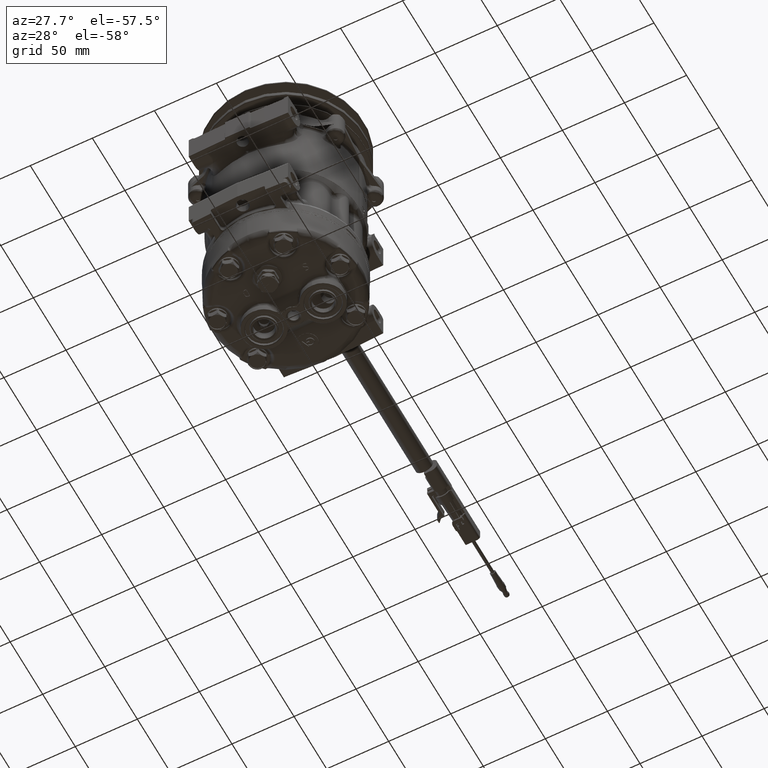
[diagram: clean part render]
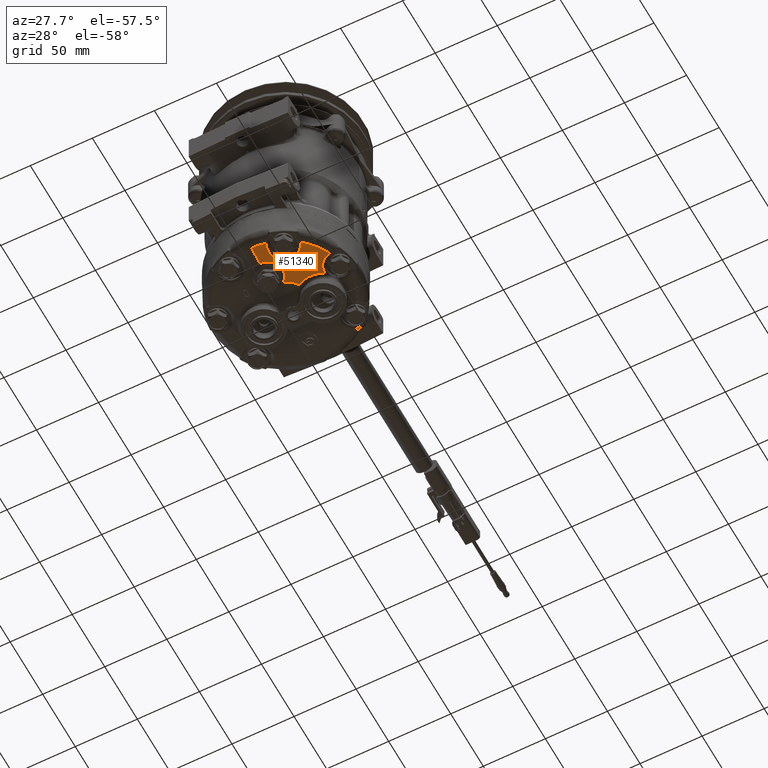
[diagram: same view with one face highlighted and labeled with its STEP entity id]
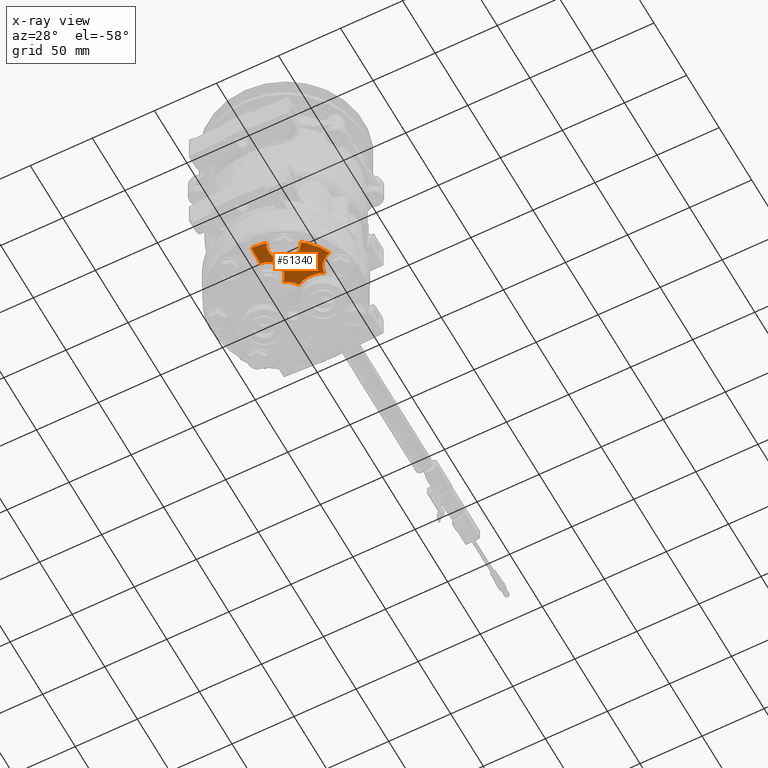
[diagram: x-ray of the same camera — body ghosted, the highlighted face saturated]
A machine part, auxiliary view. The second image highlights one B-rep face of the part: STEP entity #51340.
The next image is the same camera in x-ray: the body ghosted, the highlighted face saturated — about 0% of this face is hidden behind the body in this view.
In plain terms, the highlighted toroidal blend (fillet) surface has major radius 20 mm and minor (blend) radius 200 mm.
Its self-contained STEP definition (entity closure, byte-faithful):
#49716 = VERTEX_POINT ( 'NONE', #145042 ) ;
#49872 = EDGE_CURVE ( 'NONE', #49716, #49874, #145739, .T. ) ;
#49874 = VERTEX_POINT ( 'NONE', #145734 ) ;
#49969 = VERTEX_POINT ( 'NONE', #146394 ) ;
#49975 = EDGE_CURVE ( 'NONE', #49969, #49979, #146401, .T. ) ;
#49979 = VERTEX_POINT ( 'NONE', #146396 ) ;
#51064 = VERTEX_POINT ( 'NONE', #150993 ) ;
#51230 = EDGE_CURVE ( 'NONE', #51064, #49716, #151557, .T. ) ;
#51340 = ADVANCED_FACE ( 'NONE', ( #152023, #152019 ), #152018, .T. ) ;
#51342 = EDGE_LOOP ( 'NONE', ( #51343, #51350, #51356, #51362, #51482, #51486, #51491, #51497, #51502, #51452, #51457, #51463, #51468, #51474, #51427, #51431, #51436, #51441, #51447, #51603, #51611, #51618, #51623 ) ) ;
#51343 = ORIENTED_EDGE ( 'NONE', *, *, #51345, .T. ) ;
#51345 = EDGE_CURVE ( 'NONE', #51346, #51348, #152070, .T. ) ;
#51346 = VERTEX_POINT ( 'NONE', #152069 ) ;
#51348 = VERTEX_POINT ( 'NONE', #152071 ) ;
#51350 = ORIENTED_EDGE ( 'NONE', *, *, #51352, .T. ) ;
#51352 = EDGE_CURVE ( 'NONE', #51348, #51354, #152101, .T. ) ;
#51354 = VERTEX_POINT ( 'NONE', #152100 ) ;
#51356 = ORIENTED_EDGE ( 'NONE', *, *, #51358, .T. ) ;
#51358 = EDGE_CURVE ( 'NONE', #51354, #51360, #152085, .T. ) ;
#51360 = VERTEX_POINT ( 'NONE', #152084 ) ;
#51362 = ORIENTED_EDGE ( 'NONE', *, *, #51363, .T. ) ;
#51363 = EDGE_CURVE ( 'NONE', #51360, #51365, #152078, .T. ) ;
#51365 = VERTEX_POINT ( 'NONE', #152125 ) ;
#51366 = VERTEX_POINT ( 'NONE', #152120 ) ;
#51419 = EDGE_LOOP ( 'NONE', ( #51421, #51577, #51580, #51584, #51586, #51588, #51595, #51601, #51536 ) ) ;
#51421 = ORIENTED_EDGE ( 'NONE', *, *, #51422, .T. ) ;
#51422 = EDGE_CURVE ( 'NONE', #51425, #49979, #152728, .T. ) ;
#51425 = VERTEX_POINT ( 'NONE', #152729 ) ;
#51427 = ORIENTED_EDGE ( 'NONE', *, *, #51429, .T. ) ;
#51429 = EDGE_CURVE ( 'NONE', #51478, #51480, #152741, .T. ) ;
#51431 = ORIENTED_EDGE ( 'NONE', *, *, #51433, .T. ) ;
#51433 = EDGE_CURVE ( 'NONE', #51480, #51435, #152801, .T. ) ;
#51435 = VERTEX_POINT ( 'NONE', #152784 ) ;
#51436 = ORIENTED_EDGE ( 'NONE', *, *, #51438, .T. ) ;
#51438 = EDGE_CURVE ( 'NONE', #51435, #51440, #152843, .T. ) ;
#51440 = VERTEX_POINT ( 'NONE', #152831 ) ;
#51441 = ORIENTED_EDGE ( 'NONE', *, *, #51443, .T. ) ;
#51443 = EDGE_CURVE ( 'NONE', #51440, #51445, #152825, .T. ) ;
#51445 = VERTEX_POINT ( 'NONE', #152824 ) ;
#51447 = ORIENTED_EDGE ( 'NONE', *, *, #51448, .T. ) ;
#51448 = EDGE_CURVE ( 'NONE', #51445, #51451, #152863, .T. ) ;
#51451 = VERTEX_POINT ( 'NONE', #152861 ) ;
#51452 = ORIENTED_EDGE ( 'NONE', *, *, #51454, .T. ) ;
#51454 = EDGE_CURVE ( 'NONE', #51506, #51508, #152848, .T. ) ;
#51457 = ORIENTED_EDGE ( 'NONE', *, *, #51459, .T. ) ;
#51459 = EDGE_CURVE ( 'NONE', #51508, #51461, #152847, .T. ) ;
#51461 = VERTEX_POINT ( 'NONE', #152876 ) ;
#51463 = ORIENTED_EDGE ( 'NONE', *, *, #51465, .T. ) ;
#51465 = EDGE_CURVE ( 'NONE', #51461, #51466, #152874, .T. ) ;
#51466 = VERTEX_POINT ( 'NONE', #152875 ) ;
#51468 = ORIENTED_EDGE ( 'NONE', *, *, #51470, .T. ) ;
#51470 = EDGE_CURVE ( 'NONE', #51466, #51472, #152927, .T. ) ;
#51472 = VERTEX_POINT ( 'NONE', #152926 ) ;
#51474 = ORIENTED_EDGE ( 'NONE', *, *, #51476, .T. ) ;
#51476 = EDGE_CURVE ( 'NONE', #51472, #51478, #152911, .T. ) ;
#51478 = VERTEX_POINT ( 'NONE', #152909 ) ;
#51480 = VERTEX_POINT ( 'NONE', #152901 ) ;
#51482 = ORIENTED_EDGE ( 'NONE', *, *, #51484, .T. ) ;
#51484 = EDGE_CURVE ( 'NONE', #51365, #51366, #152994, .T. ) ;
#51486 = ORIENTED_EDGE ( 'NONE', *, *, #51487, .T. ) ;
#51487 = EDGE_CURVE ( 'NONE', #51366, #51489, #152991, .T. ) ;
#51489 = VERTEX_POINT ( 'NONE', #153034 ) ;
#51491 = ORIENTED_EDGE ( 'NONE', *, *, #51493, .T. ) ;
#51493 = EDGE_CURVE ( 'NONE', #51489, #51495, #153024, .T. ) ;
#51495 = VERTEX_POINT ( 'NONE', #153025 ) ;
#51497 = ORIENTED_EDGE ( 'NONE', *, *, #51499, .T. ) ;
#51499 = EDGE_CURVE ( 'NONE', #51495, #51501, #153058, .T. ) ;
#51501 = VERTEX_POINT ( 'NONE', #153057 ) ;
#51502 = ORIENTED_EDGE ( 'NONE', *, *, #51504, .T. ) ;
#51504 = EDGE_CURVE ( 'NONE', #51501, #51506, #153047, .T. ) ;
#51506 = VERTEX_POINT ( 'NONE', #153046 ) ;
#51508 = VERTEX_POINT ( 'NONE', #153048 ) ;
#51530 = EDGE_CURVE ( 'NONE', #51598, #51533, #153090, .T. ) ;
#51533 = VERTEX_POINT ( 'NONE', #153155 ) ;
#51536 = ORIENTED_EDGE ( 'NONE', *, *, #51538, .T. ) ;
#51538 = EDGE_CURVE ( 'NONE', #51533, #51425, #153149, .T. ) ;
#51577 = ORIENTED_EDGE ( 'NONE', *, *, #49975, .F. ) ;
#51580 = ORIENTED_EDGE ( 'NONE', *, *, #51582, .T. ) ;
#51582 = EDGE_CURVE ( 'NONE', #49969, #49874, #153319, .T. ) ;
#51584 = ORIENTED_EDGE ( 'NONE', *, *, #49872, .F. ) ;
#51586 = ORIENTED_EDGE ( 'NONE', *, *, #51230, .F. ) ;
#51588 = ORIENTED_EDGE ( 'NONE', *, *, #51590, .T. ) ;
#51590 = EDGE_CURVE ( 'NONE', #51064, #51593, #153452, .T. ) ;
#51593 = VERTEX_POINT ( 'NONE', #153446 ) ;
#51595 = ORIENTED_EDGE ( 'NONE', *, *, #51597, .T. ) ;
#51597 = EDGE_CURVE ( 'NONE', #51593, #51598, #153502, .T. ) ;
#51598 = VERTEX_POINT ( 'NONE', #153504 ) ;
#51601 = ORIENTED_EDGE ( 'NONE', *, *, #51530, .T. ) ;
#51603 = ORIENTED_EDGE ( 'NONE', *, *, #51606, .T. ) ;
#51606 = EDGE_CURVE ( 'NONE', #51451, #51609, #153512, .T. ) ;
#51609 = VERTEX_POINT ( 'NONE', #153511 ) ;
#51611 = ORIENTED_EDGE ( 'NONE', *, *, #51613, .T. ) ;
#51613 = EDGE_CURVE ( 'NONE', #51609, #51616, #153574, .T. ) ;
#51616 = VERTEX_POINT ( 'NONE', #153573 ) ;
#51618 = ORIENTED_EDGE ( 'NONE', *, *, #51620, .T. ) ;
#51620 = EDGE_CURVE ( 'NONE', #51616, #51621, #153561, .T. ) ;
#51621 = VERTEX_POINT ( 'NONE', #153562 ) ;
#51623 = ORIENTED_EDGE ( 'NONE', *, *, #51625, .T. ) ;
#51625 = EDGE_CURVE ( 'NONE', #51621, #51346, #153612, .T. ) ;
#145042 = CARTESIAN_POINT ( 'NONE',  ( 1.018713137244505700, -52.94075125080502200, -90.26947733422508700 ) ) ;
#145734 = CARTESIAN_POINT ( 'NONE',  ( 12.32475539962639400, -51.71939928505739200, -90.26947734572439700 ) ) ;
#145735 = DIRECTION ( 'NONE',  ( -6.983537939268864200E-015, 1.000000000000000000, 6.029189352846785000E-015 ) ) ;
#145736 = DIRECTION ( 'NONE',  ( 4.124709353247245000E-029, -5.906815136499264200E-015, 1.000000000000000000 ) ) ;
#145737 = CARTESIAN_POINT ( 'NONE',  ( 1.018713123910802000, -0.0001151393880446938100, -90.26947733399630600 ) ) ;
#145738 = AXIS2_PLACEMENT_3D ( 'NONE', #145737, #145736, #145735 ) ;
#145739 = CIRCLE ( 'NONE', #145738, 52.94063611205408600 ) ;
#146394 = CARTESIAN_POINT ( 'NONE',  ( 34.39365520810319800, -41.09542121886627100, -90.26947735145238000 ) ) ;
#146396 = CARTESIAN_POINT ( 'NONE',  ( 48.50522379224246100, -23.40400917164895100, -90.26947733506770500 ) ) ;
#146398 = DIRECTION ( 'NONE',  ( -1.000000000000000000, -6.982966700965728000E-015, 1.834970672625672400E-015 ) ) ;
#146399 = DIRECTION ( 'NONE',  ( 1.887972148435576200E-015, -4.997968656181713300E-015, 1.000000000000000000 ) ) ;
#146400 = AXIS2_PLACEMENT_3D ( 'NONE', #146407, #146399, #146398 ) ;
#146401 = CIRCLE ( 'NONE', #146400, 52.94063611147333900 ) ;
#146407 = CARTESIAN_POINT ( 'NONE',  ( 1.018713124603262800, -0.0001151404045683646100, -90.26947733399630600 ) ) ;
#150993 = CARTESIAN_POINT ( 'NONE',  ( 1.018713145550722600, -39.50506563162042500, -92.04746191656262500 ) ) ;
#151488 = CARTESIAN_POINT ( 'NONE',  ( 1.018713232336663900, -20.00011513430271000, 106.9991580798873800 ) ) ;
#151554 = DIRECTION ( 'NONE',  ( 6.897704725038057300E-010, 1.000000000000000000, 3.469446950830058500E-015 ) ) ;
#151555 = DIRECTION ( 'NONE',  ( -1.000000000000000000, 6.897704722314978700E-010, 6.098728848648956700E-010 ) ) ;
#151556 = AXIS2_PLACEMENT_3D ( 'NONE', #151488, #151555, #151554 ) ;
#151557 = CIRCLE ( 'NONE', #151556, 200.0000000647685900 ) ;
#152014 = DIRECTION ( 'NONE',  ( -6.983247630442773900E-015, 1.000000000000000000, 3.491483361109382100E-015 ) ) ;
#152015 = DIRECTION ( 'NONE',  ( 2.438091212180733500E-029, -3.491483361109382100E-015, 1.000000000000000000 ) ) ;
#152016 = CARTESIAN_POINT ( 'NONE',  ( 1.018713122910800200, -0.0001151407596211573300, 106.9991579784172700 ) ) ;
#152017 = AXIS2_PLACEMENT_3D ( 'NONE', #152016, #152015, #152014 ) ;
#152018 = TOROIDAL_SURFACE ( 'NONE', #152017, 19.99999999554307800, 199.9999999635804500 ) ;
#152019 = FACE_OUTER_BOUND ( 'NONE', #51419, .T. ) ;
#152023 = FACE_BOUND ( 'NONE', #51342, .T. ) ;
#152052 = CARTESIAN_POINT ( 'NONE',  ( 28.77965347123291600, -19.43043870828411100, -92.51826231291524000 ) ) ;
#152053 = CARTESIAN_POINT ( 'NONE',  ( 28.87823509689802700, -19.43335354182917700, -92.51252527804194900 ) ) ;
#152054 = CARTESIAN_POINT ( 'NONE',  ( 28.97726745347656800, -19.43764421583370300, -92.50664801253429900 ) ) ;
#152055 = CARTESIAN_POINT ( 'NONE',  ( 29.17116372047535900, -19.47004395911290300, -92.49404574293375000 ) ) ;
#152056 = CARTESIAN_POINT ( 'NONE',  ( 29.26524714274436800, -19.49562467227237800, -92.48746778318553700 ) ) ;
#152057 = CARTESIAN_POINT ( 'NONE',  ( 29.44728907952761100, -19.56684157312664500, -92.47371459080417800 ) ) ;
#152058 = CARTESIAN_POINT ( 'NONE',  ( 29.53440412150938600, -19.61561593813748100, -92.46645781276910700 ) ) ;
#152059 = CARTESIAN_POINT ( 'NONE',  ( 29.65297712664900200, -19.70045103484467900, -92.45570863130667800 ) ) ;
#152060 = CARTESIAN_POINT ( 'NONE',  ( 29.69108402194015300, -19.73052586038457800, -92.45211875837240700 ) ) ;
#152061 = CARTESIAN_POINT ( 'NONE',  ( 29.76253075435038300, -19.79672021285038500, -92.44494077245256800 ) ) ;
#152062 = CARTESIAN_POINT ( 'NONE',  ( 29.79574406053424300, -19.83300029449128500, -92.44135362077679500 ) ) ;
#152063 = CARTESIAN_POINT ( 'NONE',  ( 29.82894072696771900, -19.86929937445734500, -92.43774890067719200 ) ) ;
#152069 = CARTESIAN_POINT ( 'NONE',  ( 29.82894072696771900, -19.86929937445734500, -92.43774890067719200 ) ) ;
#152070 = B_SPLINE_CURVE_WITH_KNOTS ( 'NONE', 3,
 ( #152063, #152062, #152061, #152060, #152059, #152058, #152057, #152056, #152055, #152054, #152053, #152052 ),
 .UNSPECIFIED., .F., .F.,
 ( 4, 2, 2, 2, 2, 4 ),
 ( 1.546462688250747800E-012, 0.0001460330710122872300, 0.0002920661404781117300, 0.0005841322794097548900, 0.0008761984183413978900, 0.001168264557273040900 ),
 .UNSPECIFIED. ) ;
#152071 = CARTESIAN_POINT ( 'NONE',  ( 28.77965347123291600, -19.43043870828411100, -92.51826231291524000 ) ) ;
#152078 = B_SPLINE_CURVE_WITH_KNOTS ( 'NONE', 3,
 ( #152131, #152130, #152129, #152128, #152127, #152126 ),
 .UNSPECIFIED., .F., .F.,
 ( 4, 2, 4 ),
 ( 0.0000000000000000000, 0.0007310856149006149300, 0.001462171229801229900 ),
 .UNSPECIFIED. ) ;
#152080 = CARTESIAN_POINT ( 'NONE',  ( 27.32631602631262900, -19.84692120920037400, -92.58086651822090100 ) ) ;
#152081 = CARTESIAN_POINT ( 'NONE',  ( 27.30435263598933200, -19.81666974730917000, -92.58318713495670200 ) ) ;
#152082 = CARTESIAN_POINT ( 'NONE',  ( 27.28238888027911800, -19.78641778149446800, -92.58549779023736900 ) ) ;
#152083 = CARTESIAN_POINT ( 'NONE',  ( 27.26042476513635600, -19.75616532061230800, -92.58779848859093400 ) ) ;
#152084 = CARTESIAN_POINT ( 'NONE',  ( 27.32631602631262900, -19.84692120920037400, -92.58086651822090100 ) ) ;
#152085 = B_SPLINE_CURVE_WITH_KNOTS ( 'NONE', 3,
 ( #152083, #152082, #152081, #152080 ),
 .UNSPECIFIED., .F., .F.,
 ( 4, 4 ),
 ( 3.615218614365034900E-013, 0.0001123669957984761100 ),
 .UNSPECIFIED. ) ;
#152090 = CARTESIAN_POINT ( 'NONE',  ( 27.26042476513635600, -19.75616532061230800, -92.58779848859093400 ) ) ;
#152091 = CARTESIAN_POINT ( 'NONE',  ( 27.37838458061600000, -19.69939953579803300, -92.58393017188697600 ) ) ;
#152092 = CARTESIAN_POINT ( 'NONE',  ( 27.49768589362294700, -19.64602675963153200, -92.57979620071361600 ) ) ;
#152093 = CARTESIAN_POINT ( 'NONE',  ( 27.74527357418265100, -19.56198140275797600, -92.57002654871379800 ) ) ;
#152094 = CARTESIAN_POINT ( 'NONE',  ( 27.87211210773483600, -19.52799220493015400, -92.56459342440076900 ) ) ;
#152095 = CARTESIAN_POINT ( 'NONE',  ( 28.12851817992312700, -19.47774038377572800, -92.55271282349517000 ) ) ;
#152096 = CARTESIAN_POINT ( 'NONE',  ( 28.25836979675879200, -19.45897399590037600, -92.54634753182617100 ) ) ;
#152097 = CARTESIAN_POINT ( 'NONE',  ( 28.51840031780853100, -19.43511429931317000, -92.53286686643542700 ) ) ;
#152098 = CARTESIAN_POINT ( 'NONE',  ( 28.64899169133514800, -19.43218800597389900, -92.52564229706320000 ) ) ;
#152099 = CARTESIAN_POINT ( 'NONE',  ( 28.77965347123291600, -19.43043870828411100, -92.51826231291524000 ) ) ;
#152100 = CARTESIAN_POINT ( 'NONE',  ( 27.26042476513635600, -19.75616532061230800, -92.58779848859093400 ) ) ;
#152101 = B_SPLINE_CURVE_WITH_KNOTS ( 'NONE', 3,
 ( #152099, #152098, #152097, #152096, #152095, #152094, #152093, #152092, #152091, #152090 ),
 .UNSPECIFIED., .F., .F.,
 ( 4, 2, 2, 2, 4 ),
 ( 1.313379338272598800E-012, 0.0003920857067775851600, 0.0007841714122417909000, 0.001176257117705996600, 0.001568342823170202500 ),
 .UNSPECIFIED. ) ;
#152120 = CARTESIAN_POINT ( 'NONE',  ( 29.70213112930328200, -19.97124434376606700, -92.44121511967139800 ) ) ;
#152125 = CARTESIAN_POINT ( 'NONE',  ( 28.76100500289981800, -19.58957232037842600, -92.51294010190103700 ) ) ;
#152126 = CARTESIAN_POINT ( 'NONE',  ( 28.76100500289981800, -19.58957232037842600, -92.51294010190103700 ) ) ;
#152127 = CARTESIAN_POINT ( 'NONE',  ( 28.51737694035384500, -19.59422578946719200, -92.52667886823348900 ) ) ;
#152128 = CARTESIAN_POINT ( 'NONE',  ( 28.27703280614282700, -19.63643081693233900, -92.53837160978876900 ) ) ;
#152129 = CARTESIAN_POINT ( 'NONE',  ( 27.79929971855033000, -19.73049164403390800, -92.56062988189916000 ) ) ;
#152130 = CARTESIAN_POINT ( 'NONE',  ( 27.56242540461671800, -19.78729215104303000, -92.57096316699916400 ) ) ;
#152131 = CARTESIAN_POINT ( 'NONE',  ( 27.32631602631262900, -19.84692120920037400, -92.58086651822090100 ) ) ;
#152233 = CARTESIAN_POINT ( 'NONE',  ( 27.42453130049020500, -22.97489127767413200, -92.43743315168480000 ) ) ;
#152245 = CARTESIAN_POINT ( 'NONE',  ( 27.32963846533893500, -23.08376484226265600, -92.43742593110921700 ) ) ;
#152247 = CARTESIAN_POINT ( 'NONE',  ( 27.37626526520446600, -23.02871961737220700, -92.43751440695326900 ) ) ;
#152708 = CARTESIAN_POINT ( 'NONE',  ( 39.63413800312387300, -17.41216945440982400, -91.74704370959536000 ) ) ;
#152709 = CARTESIAN_POINT ( 'NONE',  ( 39.61006440990186000, -17.37062806699447700, -91.75142903321109600 ) ) ;
#152710 = CARTESIAN_POINT ( 'NONE',  ( 39.56379463293498600, -17.28970706454331500, -91.75987906236376500 ) ) ;
#152711 = CARTESIAN_POINT ( 'NONE',  ( 39.49516571292910800, -17.16809150588288100, -91.77244399688059700 ) ) ;
#152712 = CARTESIAN_POINT ( 'NONE',  ( 39.34043270902440500, -16.88268638734069800, -91.80099965457914400 ) ) ;
#152713 = CARTESIAN_POINT ( 'NONE',  ( 39.21696403483390000, -16.63525667758737100, -91.82419670490584500 ) ) ;
#152714 = CARTESIAN_POINT ( 'NONE',  ( 38.98197543900131000, -16.13665424438909600, -91.86895638558853200 ) ) ;
#152715 = CARTESIAN_POINT ( 'NONE',  ( 38.84124810533186400, -15.79927372181746900, -91.89661818299089200 ) ) ;
#152716 = CARTESIAN_POINT ( 'NONE',  ( 38.68437620815695500, -15.37109812904186700, -91.92869169140685400 ) ) ;
#152717 = CARTESIAN_POINT ( 'NONE',  ( 38.65257439217176500, -15.28124246840922900, -91.93526613432183600 ) ) ;
#152718 = CARTESIAN_POINT ( 'NONE',  ( 38.59256681021405900, -15.10526773453111800, -91.94782729230851700 ) ) ;
#152719 = CARTESIAN_POINT ( 'NONE',  ( 38.50571585338467200, -14.84081346487942500, -91.96624406791598000 ) ) ;
#152720 = CARTESIAN_POINT ( 'NONE',  ( 38.42827262636329500, -14.57480795811249600, -91.98341307833274500 ) ) ;
#152721 = CARTESIAN_POINT ( 'NONE',  ( 38.28573334810030800, -14.04049449982201600, -92.01615481502743400 ) ) ;
#152722 = CARTESIAN_POINT ( 'NONE',  ( 38.20717128478746400, -13.68122787404281700, -92.03585601114505700 ) ) ;
#152723 = CARTESIAN_POINT ( 'NONE',  ( 38.08191034969952000, -12.95503337909601300, -92.07132245586832700 ) ) ;
#152724 = CARTESIAN_POINT ( 'NONE',  ( 38.03565315353649400, -12.58904915882200200, -92.08701316820260300 ) ) ;
#152725 = CARTESIAN_POINT ( 'NONE',  ( 37.97623906544817600, -11.85478890139146900, -92.11431509921081300 ) ) ;
#152726 = CARTESIAN_POINT ( 'NONE',  ( 37.96316385545417700, -11.48899064500381500, -92.12584983516862300 ) ) ;
#152727 = CARTESIAN_POINT ( 'NONE',  ( 37.96648596895298800, -11.12186582368046400, -92.13542913809304500 ) ) ;
#152728 = B_SPLINE_CURVE_WITH_KNOTS ( 'NONE', 3,
 ( #152727, #152726, #152725, #152724, #152723, #152722, #152721, #152720, #152719, #152718, #152717, #152716, #152715, #152714, #152713, #152712, #152711, #152710, #152709, #152708, #152782, #152781, #152780, #152779, #152778, #152777, #152776, #152775, #152774, #152773, #152772, #152771, #152770, #152769, #152768, #152767, #152766, #152765, #152764, #152763, #152762, #152761, #152760, #152759, #152758, #152757, #152756, #152755, #152754, #152753, #152752, #152751, #152750, #152749, #152748 ),
 .UNSPECIFIED., .F., .F.,
 ( 4, 2, 2, 2, 1, 2, 2, 2, 1, 1, 2, 2, 2, 1, 1, 2, 2, 2, 1, 1, 2, 2, 2, 1, 1, 2, 2, 2, 1, 1, 2, 2, 4 ),
 ( 0.0000000000000000000, 0.06250000000000242900, 0.1250000000000048600, 0.1875000000000072700, 0.2187500000000085800, 0.2343750000000088300, 0.2500000000000090500, 0.3125000000000114900, 0.3437500000000127100, 0.3593750000000137100, 0.3671875000000140400, 0.3750000000000143800, 0.4375000000000183200, 0.4687500000000203200, 0.4843750000000211500, 0.4921875000000212600, 0.5000000000000213200, 0.5625000000000226500, 0.5937500000000232000, 0.6093750000000233100, 0.6171875000000226500, 0.6250000000000219800, 0.6875000000000192100, 0.7187500000000173200, 0.7343750000000163200, 0.7421875000000158800, 0.7500000000000153200, 0.8125000000000113200, 0.8437500000000095500, 0.8593750000000092100, 0.8671875000000087700, 0.8750000000000082200, 1.000000000000000000 ),
 .UNSPECIFIED. ) ;
#152729 = CARTESIAN_POINT ( 'NONE',  ( 37.96648596895298800, -11.12186582368046400, -92.13542913809304500 ) ) ;
#152741 = B_SPLINE_CURVE_WITH_KNOTS ( 'NONE', 3,
 ( #152747, #152745, #152744, #152743, #152813, #152812, #152811, #152810, #152809, #152808, #152807, #152806 ),
 .UNSPECIFIED., .F., .F.,
 ( 4, 2, 2, 2, 2, 4 ),
 ( 3.710096383432205700E-012, 0.0009410953805846587100, 0.001411643069021934200, 0.001646916913240572800, 0.001764553835349896100, 0.001882190757459219400 ),
 .UNSPECIFIED. ) ;
#152743 = CARTESIAN_POINT ( 'NONE',  ( 29.03034447187052400, -24.74208062550417600, -92.24480889950903900 ) ) ;
#152744 = CARTESIAN_POINT ( 'NONE',  ( 29.47132665020918200, -24.57940657327822400, -92.22516151526069500 ) ) ;
#152745 = CARTESIAN_POINT ( 'NONE',  ( 29.76025399543765500, -24.45741911859621400, -92.21274637448480900 ) ) ;
#152747 = CARTESIAN_POINT ( 'NONE',  ( 30.04774944631617800, -24.33249990382222100, -92.20017382423922900 ) ) ;
#152748 = CARTESIAN_POINT ( 'NONE',  ( 48.50522379224246100, -23.40400917164895100, -90.26947733506770500 ) ) ;
#152749 = CARTESIAN_POINT ( 'NONE',  ( 47.76061463433976000, -23.29581010855490300, -90.38899244060824900 ) ) ;
#152750 = CARTESIAN_POINT ( 'NONE',  ( 47.04632708632167500, -23.12290919968530600, -90.50450570694289400 ) ) ;
#152751 = CARTESIAN_POINT ( 'NONE',  ( 46.31784642075944400, -22.87852658005790500, -90.62300148599440800 ) ) ;
#152752 = CARTESIAN_POINT ( 'NONE',  ( 46.27165401992216700, -22.86274831236487200, -90.63051796275115600 ) ) ;
#152753 = CARTESIAN_POINT ( 'NONE',  ( 46.18311204930747500, -22.83192129194510000, -90.64493132901348800 ) ) ;
#152754 = CARTESIAN_POINT ( 'NONE',  ( 46.05080063079306300, -22.78500955177086200, -90.66647803615541100 ) ) ;
#152755 = CARTESIAN_POINT ( 'NONE',  ( 45.74556991304997000, -22.67089414592941300, -90.71624256011784800 ) ) ;
#152756 = CARTESIAN_POINT ( 'NONE',  ( 45.48988440257232900, -22.56525033673924300, -90.75802941880664300 ) ) ;
#152757 = CARTESIAN_POINT ( 'NONE',  ( 44.98628224020884400, -22.34390528494372300, -90.84046577355101700 ) ) ;
#152758 = CARTESIAN_POINT ( 'NONE',  ( 44.66091016263129600, -22.18293677357498000, -90.89390691553535400 ) ) ;
#152759 = CARTESIAN_POINT ( 'NONE',  ( 44.30600683641593200, -21.98785017206622100, -90.95238316909674800 ) ) ;
#152760 = CARTESIAN_POINT ( 'NONE',  ( 44.26327905897388600, -21.96405830373101200, -90.95942615372615600 ) ) ;
#152761 = CARTESIAN_POINT ( 'NONE',  ( 44.18173275068077300, -21.91801896426250800, -90.97287381017781600 ) ) ;
#152762 = CARTESIAN_POINT ( 'NONE',  ( 44.06002737086358000, -21.84839078788189700, -90.99295281426503800 ) ) ;
#152763 = CARTESIAN_POINT ( 'NONE',  ( 43.78032370460483900, -21.68198288839603500, -91.03916084194645500 ) ) ;
#152764 = CARTESIAN_POINT ( 'NONE',  ( 43.54782731835902600, -21.53273176682977000, -91.07768044025300500 ) ) ;
#152765 = CARTESIAN_POINT ( 'NONE',  ( 43.09227854998670900, -21.22576821203285000, -91.15330926858405300 ) ) ;
#152766 = CARTESIAN_POINT ( 'NONE',  ( 42.80117414852827600, -21.00985093957881500, -91.20184821427565700 ) ) ;
#152767 = CARTESIAN_POINT ( 'NONE',  ( 42.48714316691512500, -20.75524362793037300, -91.25445429708031500 ) ) ;
#152768 = CARTESIAN_POINT ( 'NONE',  ( 42.44912188288525800, -20.72407187579075200, -91.26082744796033800 ) ) ;
#152769 = CARTESIAN_POINT ( 'NONE',  ( 42.37690910080670600, -20.66414873560479700, -91.27294007452714200 ) ) ;
#152770 = CARTESIAN_POINT ( 'NONE',  ( 42.26928937755281600, -20.57380402889927900, -91.29100367061960200 ) ) ;
#152771 = CARTESIAN_POINT ( 'NONE',  ( 42.02304371134237500, -20.35981485220587900, -91.33242095412389000 ) ) ;
#152772 = CARTESIAN_POINT ( 'NONE',  ( 41.82021907959075700, -20.17105380395509300, -91.36668963492636000 ) ) ;
#152773 = CARTESIAN_POINT ( 'NONE',  ( 41.42528836207727500, -19.78669894695956800, -91.43364051788900300 ) ) ;
#152774 = CARTESIAN_POINT ( 'NONE',  ( 41.17629389117422500, -19.52136090704694400, -91.47615961643570900 ) ) ;
#152775 = CARTESIAN_POINT ( 'NONE',  ( 40.91141790502523200, -19.21336196530143100, -91.52177585893407800 ) ) ;
#152776 = CARTESIAN_POINT ( 'NONE',  ( 40.87981145599656000, -19.17620028167665700, -91.52722513228829400 ) ) ;
#152777 = CARTESIAN_POINT ( 'NONE',  ( 40.81952665102306100, -19.10446825108412500, -91.53763181746019500 ) ) ;
#152778 = CARTESIAN_POINT ( 'NONE',  ( 40.72985025079953700, -18.99652303206715900, -91.55313115186882600 ) ) ;
#152779 = CARTESIAN_POINT ( 'NONE',  ( 40.52582941476821800, -18.74224264570613500, -91.58852906961831800 ) ) ;
#152780 = CARTESIAN_POINT ( 'NONE',  ( 40.35980174733775500, -18.52023232311369600, -91.61758100227076800 ) ) ;
#152781 = CARTESIAN_POINT ( 'NONE',  ( 40.03925356235839000, -18.07096818989683500, -91.67403327470117300 ) ) ;
#152782 = CARTESIAN_POINT ( 'NONE',  ( 39.84089783702224000, -17.76447804028565600, -91.70946682341112000 ) ) ;
#152784 = CARTESIAN_POINT ( 'NONE',  ( 27.40712606317982700, -24.52520076338744200, -92.35777596376959800 ) ) ;
#152785 = CARTESIAN_POINT ( 'NONE',  ( 27.40712606317982700, -24.52520076338744200, -92.35777596376959800 ) ) ;
#152786 = CARTESIAN_POINT ( 'NONE',  ( 27.43464577004344600, -24.55625559835287700, -92.35445610208657300 ) ) ;
#152787 = CARTESIAN_POINT ( 'NONE',  ( 27.46230413208440500, -24.58744934271515700, -92.35110739330150400 ) ) ;
#152788 = CARTESIAN_POINT ( 'NONE',  ( 27.52142599962284200, -24.64500098013489900, -92.34442502582953700 ) ) ;
#152789 = CARTESIAN_POINT ( 'NONE',  ( 27.55277822589117800, -24.67117213982092500, -92.34110843862771400 ) ) ;
#152790 = CARTESIAN_POINT ( 'NONE',  ( 27.64933765237528700, -24.74604374536077600, -92.33117410058643800 ) ) ;
#152791 = CARTESIAN_POINT ( 'NONE',  ( 27.71876972785070900, -24.78860002013356500, -92.32460793388209200 ) ) ;
#152792 = CARTESIAN_POINT ( 'NONE',  ( 27.86966567736085300, -24.85621640540353600, -92.31163295115247500 ) ) ;
#152793 = CARTESIAN_POINT ( 'NONE',  ( 27.94793420782279000, -24.88149526662553500, -92.30540532906570700 ) ) ;
#152794 = CARTESIAN_POINT ( 'NONE',  ( 28.10710062344433200, -24.91344046901357200, -92.29376137456031900 ) ) ;
#152795 = CARTESIAN_POINT ( 'NONE',  ( 28.18886359906662200, -24.91837950312385900, -92.28839114718672900 ) ) ;
#152796 = CARTESIAN_POINT ( 'NONE',  ( 28.27117184891098100, -24.92054833230181600, -92.28310694374715700 ) ) ;
#152801 = B_SPLINE_CURVE_WITH_KNOTS ( 'NONE', 3,
 ( #152796, #152795, #152794, #152793, #152792, #152791, #152790, #152789, #152788, #152787, #152786, #152785 ),
 .UNSPECIFIED., .F., .F.,
 ( 4, 2, 2, 2, 2, 4 ),
 ( 2.694569747624965900E-012, 0.0002441321225602088800, 0.0004882642424258480300, 0.0007323963622914871300, 0.0008544624222243107000, 0.0009765284821571344800 ),
 .UNSPECIFIED. ) ;
#152806 = CARTESIAN_POINT ( 'NONE',  ( 28.27117184891098100, -24.92054833230181600, -92.28310694374715700 ) ) ;
#152807 = CARTESIAN_POINT ( 'NONE',  ( 28.31064698638326100, -24.91872229167773200, -92.28073693954928600 ) ) ;
#152808 = CARTESIAN_POINT ( 'NONE',  ( 28.35011937494837400, -24.91688545779605900, -92.27835893335586100 ) ) ;
#152809 = CARTESIAN_POINT ( 'NONE',  ( 28.42795984185099900, -24.90802464962076000, -92.27395421994855000 ) ) ;
#152810 = CARTESIAN_POINT ( 'NONE',  ( 28.46629789687445800, -24.90085947016795800, -92.27193782341015500 ) ) ;
#152811 = CARTESIAN_POINT ( 'NONE',  ( 28.58061923688523400, -24.87611224419905300, -92.26609793500792000 ) ) ;
#152812 = CARTESIAN_POINT ( 'NONE',  ( 28.65624364071483000, -24.85684844614741400, -92.26237185548900800 ) ) ;
#152813 = CARTESIAN_POINT ( 'NONE',  ( 28.88195752270409900, -24.79362720579744600, -92.25149615163454100 ) ) ;
#152816 = CARTESIAN_POINT ( 'NONE',  ( 27.25238513648276500, -23.20573409257052700, -92.43572032715263700 ) ) ;
#152817 = CARTESIAN_POINT ( 'NONE',  ( 27.21937575511965300, -23.27069854919369600, -92.43433478578106100 ) ) ;
#152818 = CARTESIAN_POINT ( 'NONE',  ( 27.16761102021615700, -23.40437649423359200, -92.43053257744691100 ) ) ;
#152819 = CARTESIAN_POINT ( 'NONE',  ( 27.14918496586976500, -23.47432438492943900, -92.42803536514034600 ) ) ;
#152820 = CARTESIAN_POINT ( 'NONE',  ( 27.12536220566043000, -23.61728090921643300, -92.42210193806113200 ) ) ;
#152821 = CARTESIAN_POINT ( 'NONE',  ( 27.12188325889087500, -23.68950175993966700, -92.41859704866084300 ) ) ;
#152822 = CARTESIAN_POINT ( 'NONE',  ( 27.11993962272744300, -23.76185672413413400, -92.41497082053595600 ) ) ;
#152824 = CARTESIAN_POINT ( 'NONE',  ( 27.42453130049020500, -22.97489127767413200, -92.43743315168480000 ) ) ;
#152825 = B_SPLINE_CURVE_WITH_KNOTS ( 'NONE', 3,
 ( #152822, #152821, #152820, #152819, #152818, #152817, #152816, #152245, #152247, #152233 ),
 .UNSPECIFIED., .F., .F.,
 ( 4, 2, 2, 2, 4 ),
 ( 6.826099481429405400E-012, 0.0002169709725656985000, 0.0004339419383052975300, 0.0006509129040448965800, 0.0008678838697844955800 ),
 .UNSPECIFIED. ) ;
#152831 = CARTESIAN_POINT ( 'NONE',  ( 27.11993962272744300, -23.76185672413413400, -92.41497082053595600 ) ) ;
#152832 = CARTESIAN_POINT ( 'NONE',  ( 27.11993962272744300, -23.76185672413413400, -92.41497082053595600 ) ) ;
#152833 = CARTESIAN_POINT ( 'NONE',  ( 27.12221743445093800, -23.83164966298029000, -92.41123743497166700 ) ) ;
#152834 = CARTESIAN_POINT ( 'NONE',  ( 27.12589568317692800, -23.90156572527163800, -92.40739273590226300 ) ) ;
#152835 = CARTESIAN_POINT ( 'NONE',  ( 27.14993360883613600, -24.03899151753498500, -92.39882030303121500 ) ) ;
#152836 = CARTESIAN_POINT ( 'NONE',  ( 27.16983970557933100, -24.10491138480242800, -92.39420102978384400 ) ) ;
#152837 = CARTESIAN_POINT ( 'NONE',  ( 27.21864437207804200, -24.23356428532268200, -92.38455029870925700 ) ) ;
#152838 = CARTESIAN_POINT ( 'NONE',  ( 27.24952542354570500, -24.29598808519197200, -92.37942090240682100 ) ) ;
#152839 = CARTESIAN_POINT ( 'NONE',  ( 27.32188965277159200, -24.41505696278013800, -92.36878587061309500 ) ) ;
#152840 = CARTESIAN_POINT ( 'NONE',  ( 27.36359665206959900, -24.47076167359899700, -92.36331819021752700 ) ) ;
#152841 = CARTESIAN_POINT ( 'NONE',  ( 27.40712606317982700, -24.52520076338744200, -92.35777596376959800 ) ) ;
#152843 = B_SPLINE_CURVE_WITH_KNOTS ( 'NONE', 3,
 ( #152841, #152840, #152839, #152838, #152837, #152836, #152835, #152834, #152833, #152832 ),
 .UNSPECIFIED., .F., .F.,
 ( 4, 2, 2, 2, 4 ),
 ( 0.0000000000000000000, 0.0002092548237804237600, 0.0004185096475608475100, 0.0006277644713412713000, 0.0008370192951216950300 ),
 .UNSPECIFIED. ) ;
#152845 = CARTESIAN_POINT ( 'NONE',  ( 27.63472118496053300, -22.57978145584357700, -92.44480455357630400 ) ) ;
#152846 = CARTESIAN_POINT ( 'NONE',  ( 27.74404175891096000, -22.50992275230182200, -92.44191190553537800 ) ) ;
#152847 = B_SPLINE_CURVE_WITH_KNOTS ( 'NONE', 3,
 ( #152886, #152885, #152884, #152883, #152882, #152881, #152880, #152879, #152878, #152877 ),
 .UNSPECIFIED., .F., .F.,
 ( 4, 2, 2, 2, 4 ),
 ( 0.0000000000000000000, 0.0002363111847292269000, 0.0004726223694584538100, 0.0007089335541876806900, 0.0009452447389169076200 ),
 .UNSPECIFIED. ) ;
#152848 = B_SPLINE_CURVE_WITH_KNOTS ( 'NONE', 3,
 ( #152846, #152845, #152900, #152899, #152898, #152897, #152896, #152895, #152894, #152893, #152892, #152891 ),
 .UNSPECIFIED., .F., .F.,
 ( 4, 2, 2, 2, 2, 4 ),
 ( 0.0000000000000000000, 0.0003847532933132476500, 0.0007695065866264953100, 0.001154259879939743000, 0.001346636526596366800, 0.001539013173252990600 ),
 .UNSPECIFIED. ) ;
#152852 = CARTESIAN_POINT ( 'NONE',  ( 28.09587622897523900, -22.50867952123489600, -92.42157359375606500 ) ) ;
#152853 = CARTESIAN_POINT ( 'NONE',  ( 27.97609810634607200, -22.57479782029541600, -92.42537540639340000 ) ) ;
#152854 = CARTESIAN_POINT ( 'NONE',  ( 27.85686448073461500, -22.64223672453796600, -92.42900827457359000 ) ) ;
#152855 = CARTESIAN_POINT ( 'NONE',  ( 27.68591180883686000, -22.75567796017441000, -92.43330007584607700 ) ) ;
#152856 = CARTESIAN_POINT ( 'NONE',  ( 27.62941432024929300, -22.79457157621550000, -92.43463288843550200 ) ) ;
#152857 = CARTESIAN_POINT ( 'NONE',  ( 27.52245178048060100, -22.87956474738807300, -92.43656806260384000 ) ) ;
#152858 = CARTESIAN_POINT ( 'NONE',  ( 27.47334224334843400, -22.92705729287005300, -92.43702501140943200 ) ) ;
#152859 = CARTESIAN_POINT ( 'NONE',  ( 27.42453130049020500, -22.97489127767413200, -92.43743315168480000 ) ) ;
#152861 = CARTESIAN_POINT ( 'NONE',  ( 28.09587622897523900, -22.50867952123489600, -92.42157359375606500 ) ) ;
#152863 = B_SPLINE_CURVE_WITH_KNOTS ( 'NONE', 3,
 ( #152859, #152858, #152857, #152856, #152855, #152854, #152853, #152852 ),
 .UNSPECIFIED., .F., .F.,
 ( 4, 2, 2, 4 ),
 ( 3.384054600717077700E-012, 0.0002047098505113415000, 0.0004094196976386284000, 0.0008188393918932003200 ),
 .UNSPECIFIED. ) ;
#152868 = CARTESIAN_POINT ( 'NONE',  ( 27.79414390186156000, -25.00775353379402000, -92.30764582880490800 ) ) ;
#152869 = CARTESIAN_POINT ( 'NONE',  ( 27.62654659575333200, -24.93002103532705500, -92.32221786004515700 ) ) ;
#152870 = CARTESIAN_POINT ( 'NONE',  ( 27.54727975765515400, -24.88225236408205300, -92.32967191080081200 ) ) ;
#152871 = CARTESIAN_POINT ( 'NONE',  ( 27.40441288020855700, -24.77010257987057400, -92.34444904821104700 ) ) ;
#152872 = CARTESIAN_POINT ( 'NONE',  ( 27.34157407347668600, -24.70334036255815100, -92.35186070874615900 ) ) ;
#152873 = CARTESIAN_POINT ( 'NONE',  ( 27.28031646591097500, -24.63460512230182400, -92.35922393984428400 ) ) ;
#152874 = B_SPLINE_CURVE_WITH_KNOTS ( 'NONE', 3,
 ( #152873, #152872, #152871, #152870, #152869, #152868, #152932, #152931, #152930, #152929 ),
 .UNSPECIFIED., .F., .F.,
 ( 4, 2, 2, 2, 4 ),
 ( 5.105654585197962000E-012, 0.0002733229791775830900, 0.0005466459532495116700, 0.0008199689273214402500, 0.001093291901393368700 ),
 .UNSPECIFIED. ) ;
#152875 = CARTESIAN_POINT ( 'NONE',  ( 28.24630722168867400, -25.07968194430813500, -92.27550251553950000 ) ) ;
#152876 = CARTESIAN_POINT ( 'NONE',  ( 27.28031646591097500, -24.63460512230182400, -92.35922393984428400 ) ) ;
#152877 = CARTESIAN_POINT ( 'NONE',  ( 27.28031646591097500, -24.63460512230182400, -92.35922393984428400 ) ) ;
#152878 = CARTESIAN_POINT ( 'NONE',  ( 27.23210054343096000, -24.57236063944699500, -92.36546686490778800 ) ) ;
#152879 = CARTESIAN_POINT ( 'NONE',  ( 27.18546442556159100, -24.50901454159529200, -92.37163128021563800 ) ) ;
#152880 = CARTESIAN_POINT ( 'NONE',  ( 27.10479288319295000, -24.37356234651354500, -92.38361521216722800 ) ) ;
#152881 = CARTESIAN_POINT ( 'NONE',  ( 27.07025318833214600, -24.30330405922101300, -92.38936398637403600 ) ) ;
#152882 = CARTESIAN_POINT ( 'NONE',  ( 27.01590632307456000, -24.15753598753530400, -92.40021799027120200 ) ) ;
#152883 = CARTESIAN_POINT ( 'NONE',  ( 26.99504243371472600, -24.08205143236469700, -92.40538228725868900 ) ) ;
#152884 = CARTESIAN_POINT ( 'NONE',  ( 26.96726834400552200, -23.92669819745629300, -92.41507616966232800 ) ) ;
#152885 = CARTESIAN_POINT ( 'NONE',  ( 26.96275020246581300, -23.84813020756275700, -92.41940350968440000 ) ) ;
#152886 = CARTESIAN_POINT ( 'NONE',  ( 26.96080601098741500, -23.76931610840104600, -92.42356678440711400 ) ) ;
#152891 = CARTESIAN_POINT ( 'NONE',  ( 26.96080601098741500, -23.76931610840104600, -92.42356678440711400 ) ) ;
#152892 = CARTESIAN_POINT ( 'NONE',  ( 26.96323285054456400, -23.70403546904496000, -92.42678851439004000 ) ) ;
#152893 = CARTESIAN_POINT ( 'NONE',  ( 26.96567392724970700, -23.63875587617943100, -92.42998724177820700 ) ) ;
#152894 = CARTESIAN_POINT ( 'NONE',  ( 26.98137708658517300, -23.50971438398427800, -92.43566210087918500 ) ) ;
#152895 = CARTESIAN_POINT ( 'NONE',  ( 26.99449703613966600, -23.44593255284666400, -92.43814787596225800 ) ) ;
#152896 = CARTESIAN_POINT ( 'NONE',  ( 27.04930948685868900, -23.25675474744475200, -92.44458274768446400 ) ) ;
#152897 = CARTESIAN_POINT ( 'NONE',  ( 27.10537900396084200, -23.13882967120946100, -92.44730525424006400 ) ) ;
#152898 = CARTESIAN_POINT ( 'NONE',  ( 27.24878021346222600, -22.92029785907547500, -92.45004332150711000 ) ) ;
#152899 = CARTESIAN_POINT ( 'NONE',  ( 27.33566011253437700, -22.82228465876095700, -92.44995510934116100 ) ) ;
#152900 = CARTESIAN_POINT ( 'NONE',  ( 27.52708639992006600, -22.65156152409698000, -92.44744600435433300 ) ) ;
#152901 = CARTESIAN_POINT ( 'NONE',  ( 28.27117184891098100, -24.92054833230181600, -92.28310694374715700 ) ) ;
#152905 = CARTESIAN_POINT ( 'NONE',  ( 30.04774944631617800, -24.33249990382222100, -92.20017382423922900 ) ) ;
#152906 = CARTESIAN_POINT ( 'NONE',  ( 30.07095702016019300, -24.36565358608641700, -92.19666610560945200 ) ) ;
#152907 = CARTESIAN_POINT ( 'NONE',  ( 30.09416400115569000, -24.39880642672127200, -92.19314648341111300 ) ) ;
#152908 = CARTESIAN_POINT ( 'NONE',  ( 30.11737039681903400, -24.43195841074188800, -92.18961497191743600 ) ) ;
#152909 = CARTESIAN_POINT ( 'NONE',  ( 30.04774944631617800, -24.33249990382222100, -92.20017382423922900 ) ) ;
#152911 = B_SPLINE_CURVE_WITH_KNOTS ( 'NONE', 3,
 ( #152908, #152907, #152906, #152905 ),
 .UNSPECIFIED., .F., .F.,
 ( 4, 4 ),
 ( 0.0000000000000000000, 0.0001218628747782724600 ),
 .UNSPECIFIED. ) ;
#152912 = CARTESIAN_POINT ( 'NONE',  ( 30.11737039681903400, -24.43195841074188800, -92.18961497191743600 ) ) ;
#152913 = CARTESIAN_POINT ( 'NONE',  ( 30.04887892369779200, -24.48031786686910700, -92.19154450881995900 ) ) ;
#152914 = CARTESIAN_POINT ( 'NONE',  ( 29.98037599103668800, -24.52865994685590000, -92.19344919926720600 ) ) ;
#152915 = CARTESIAN_POINT ( 'NONE',  ( 29.83815698334251100, -24.61680316460182600, -92.19805950209502000 ) ) ;
#152916 = CARTESIAN_POINT ( 'NONE',  ( 29.76462341979963000, -24.65690344339168000, -92.20073475886957200 ) ) ;
#152917 = CARTESIAN_POINT ( 'NONE',  ( 29.54031551104483500, -24.77113327768825400, -92.20927931214154700 ) ) ;
#152918 = CARTESIAN_POINT ( 'NONE',  ( 29.38643341759416900, -24.83728262002625100, -92.21573955716149800 ) ) ;
#152919 = CARTESIAN_POINT ( 'NONE',  ( 29.06999798241885500, -24.94888625751607900, -92.23019519686067700 ) ) ;
#152920 = CARTESIAN_POINT ( 'NONE',  ( 28.90891441384211900, -24.99444165846084300, -92.23808761133787500 ) ) ;
#152921 = CARTESIAN_POINT ( 'NONE',  ( 28.66225346125127500, -25.04422520129610800, -92.25112737321363500 ) ) ;
#152922 = CARTESIAN_POINT ( 'NONE',  ( 28.57972907335760800, -25.05797794141855300, -92.25562495661158400 ) ) ;
#152923 = CARTESIAN_POINT ( 'NONE',  ( 28.41362678537001000, -25.07486115925910000, -92.26523175398575900 ) ) ;
#152924 = CARTESIAN_POINT ( 'NONE',  ( 28.32997146271189600, -25.07730458564703100, -92.27038483665010900 ) ) ;
#152925 = CARTESIAN_POINT ( 'NONE',  ( 28.24630722168867400, -25.07968194430813500, -92.27550251553950000 ) ) ;
#152926 = CARTESIAN_POINT ( 'NONE',  ( 30.11737039681903400, -24.43195841074188800, -92.18961497191743600 ) ) ;
#152927 = B_SPLINE_CURVE_WITH_KNOTS ( 'NONE', 3,
 ( #152925, #152924, #152923, #152922, #152921, #152920, #152919, #152918, #152917, #152916, #152915, #152914, #152913, #152912 ),
 .UNSPECIFIED., .F., .F.,
 ( 4, 2, 2, 2, 2, 2, 4 ),
 ( 2.308266808881492700E-013, 0.0002508506808984545300, 0.0005017013615660823200, 0.001003402722901338000, 0.001505104084236593600, 0.001755954764904216000, 0.002006805445571838500 ),
 .UNSPECIFIED. ) ;
#152929 = CARTESIAN_POINT ( 'NONE',  ( 28.24630722168867400, -25.07968194430813500, -92.27550251553950000 ) ) ;
#152930 = CARTESIAN_POINT ( 'NONE',  ( 28.15349745928719800, -25.07659320707838900, -92.28151091187378100 ) ) ;
#152931 = CARTESIAN_POINT ( 'NONE',  ( 28.06031765813556300, -25.07122204045586500, -92.28762470956745300 ) ) ;
#152932 = CARTESIAN_POINT ( 'NONE',  ( 27.88088773126753500, -25.03602976759118400, -92.30072127526584300 ) ) ;
#152975 = CARTESIAN_POINT ( 'NONE',  ( 29.78729071683382300, -20.07506121818478200, -92.43149576963958200 ) ) ;
#152976 = CARTESIAN_POINT ( 'NONE',  ( 29.74550283356362700, -20.02256624963209600, -92.43634840461675100 ) ) ;
#152977 = CARTESIAN_POINT ( 'NONE',  ( 29.70213112930328200, -19.97124434376606700, -92.44121511967139800 ) ) ;
#152979 = CARTESIAN_POINT ( 'NONE',  ( 29.70213112930328200, -19.97124434376606700, -92.44121511967139800 ) ) ;
#152980 = CARTESIAN_POINT ( 'NONE',  ( 29.67212794867235500, -19.93915646818840400, -92.44443547665456200 ) ) ;
#152981 = CARTESIAN_POINT ( 'NONE',  ( 29.64210933457521700, -19.90708563280331900, -92.44764183398895300 ) ) ;
#152982 = CARTESIAN_POINT ( 'NONE',  ( 29.57723525163072500, -19.84879534907592500, -92.45407299672001500 ) ) ;
#152983 = CARTESIAN_POINT ( 'NONE',  ( 29.54255585172548100, -19.82236277944910800, -92.45729608407563700 ) ) ;
#152984 = CARTESIAN_POINT ( 'NONE',  ( 29.43472608730358800, -19.74764945976119900, -92.46695860810740400 ) ) ;
#152985 = CARTESIAN_POINT ( 'NONE',  ( 29.35621780638788900, -19.70681643448667200, -92.47336428869918700 ) ) ;
#152986 = CARTESIAN_POINT ( 'NONE',  ( 29.19438997386163200, -19.64481358683643800, -92.48553586388999300 ) ) ;
#152987 = CARTESIAN_POINT ( 'NONE',  ( 29.10978540554115300, -19.62289146762194700, -92.49141042209517100 ) ) ;
#152988 = CARTESIAN_POINT ( 'NONE',  ( 28.93631640567135600, -19.59554020198888900, -92.50263127342398700 ) ) ;
#152989 = CARTESIAN_POINT ( 'NONE',  ( 28.84872515291860400, -19.59182098265165800, -92.50783495690514300 ) ) ;
#152990 = CARTESIAN_POINT ( 'NONE',  ( 28.76100500289981800, -19.58957232037842600, -92.51294010190103700 ) ) ;
#152991 = B_SPLINE_CURVE_WITH_KNOTS ( 'NONE', 3,
 ( #152977, #152976, #152975, #153041, #153040, #153039, #153038, #153037, #153036, #153035 ),
 .UNSPECIFIED., .F., .F.,
 ( 4, 2, 2, 2, 4 ),
 ( 0.0000000000000000000, 0.0002016900373157333000, 0.0004033800746314665900, 0.0006050701119471998600, 0.0008067601492629331800 ),
 .UNSPECIFIED. ) ;
#152994 = B_SPLINE_CURVE_WITH_KNOTS ( 'NONE', 3,
 ( #152990, #152989, #152988, #152987, #152986, #152985, #152984, #152983, #152982, #152981, #152980, #152979 ),
 .UNSPECIFIED., .F., .F.,
 ( 4, 2, 2, 2, 2, 4 ),
 ( 0.0000000000000000000, 0.0002632533062624391000, 0.0005265066125248781900, 0.0007897599187873172900, 0.0009213865719185322300, 0.001053013225049747300 ),
 .UNSPECIFIED. ) ;
#153007 = CARTESIAN_POINT ( 'NONE',  ( 29.22473029189858500, -21.78511887730688600, -92.38842841874935600 ) ) ;
#153008 = CARTESIAN_POINT ( 'NONE',  ( 29.32885397575680700, -21.73057911366031200, -92.38457964024605900 ) ) ;
#153009 = CARTESIAN_POINT ( 'NONE',  ( 29.43200709561183000, -21.67376887406976100, -92.38084211718747000 ) ) ;
#153010 = CARTESIAN_POINT ( 'NONE',  ( 29.61752424642102700, -21.53339436515671700, -92.37585449061155900 ) ) ;
#153011 = CARTESIAN_POINT ( 'NONE',  ( 29.70346809759927700, -21.45076284773094200, -92.37433484048720800 ) ) ;
#153012 = CARTESIAN_POINT ( 'NONE',  ( 29.84315785588824400, -21.26438462889890200, -92.37425474726369100 ) ) ;
#153013 = CARTESIAN_POINT ( 'NONE',  ( 29.89852631108275800, -21.15982082888478600, -92.37563096304340600 ) ) ;
#153014 = CARTESIAN_POINT ( 'NONE',  ( 29.95163668853474400, -20.99227856167893300, -92.38003211602153900 ) ) ;
#153015 = CARTESIAN_POINT ( 'NONE',  ( 29.96411664107997900, -20.93553892885910300, -92.38186191862860100 ) ) ;
#153016 = CARTESIAN_POINT ( 'NONE',  ( 29.97927748252969900, -20.82038569862129800, -92.38619580932820000 ) ) ;
#153017 = CARTESIAN_POINT ( 'NONE',  ( 29.98182138170299600, -20.76194869273225800, -92.38870918557847700 ) ) ;
#153018 = CARTESIAN_POINT ( 'NONE',  ( 29.98434464398799200, -20.70350760451744800, -92.39120798399049800 ) ) ;
#153024 = B_SPLINE_CURVE_WITH_KNOTS ( 'NONE', 3,
 ( #153018, #153017, #153016, #153015, #153014, #153013, #153012, #153011, #153010, #153009, #153008, #153007 ),
 .UNSPECIFIED., .F., .F.,
 ( 4, 2, 2, 2, 2, 4 ),
 ( 1.774841428972760000E-012, 0.0001741973033253046400, 0.0003483946048757678800, 0.0006967892079767020100, 0.001045183811077635900, 0.001393578414178570300 ),
 .UNSPECIFIED. ) ;
#153025 = CARTESIAN_POINT ( 'NONE',  ( 29.22473029189858500, -21.78511887730688600, -92.38842841874935600 ) ) ;
#153034 = CARTESIAN_POINT ( 'NONE',  ( 29.98434464398799200, -20.70350760451744800, -92.39120798399049800 ) ) ;
#153035 = CARTESIAN_POINT ( 'NONE',  ( 29.98434464398799200, -20.70350760451744800, -92.39120798399049800 ) ) ;
#153036 = CARTESIAN_POINT ( 'NONE',  ( 29.98208187253005300, -20.63641489686916900, -92.39440519961233600 ) ) ;
#153037 = CARTESIAN_POINT ( 'NONE',  ( 29.97900515929531200, -20.56940534562524900, -92.39762923210827200 ) ) ;
#153038 = CARTESIAN_POINT ( 'NONE',  ( 29.95573227857359900, -20.43715547270095500, -92.40503479608732100 ) ) ;
#153039 = CARTESIAN_POINT ( 'NONE',  ( 29.93680442066830600, -20.37263104829744300, -92.40910262739328100 ) ) ;
#153040 = CARTESIAN_POINT ( 'NONE',  ( 29.88918187353736000, -20.24860558373910300, -92.41757438065262400 ) ) ;
#153041 = CARTESIAN_POINT ( 'NONE',  ( 29.85891705950960400, -20.18891835014252900, -92.42208554309498000 ) ) ;
#153046 = CARTESIAN_POINT ( 'NONE',  ( 27.74404175891096000, -22.50992275230182200, -92.44191190553537800 ) ) ;
#153047 = B_SPLINE_CURVE_WITH_KNOTS ( 'NONE', 3,
 ( #153074, #153073, #153072, #153071, #153070, #153069, #153068, #153067, #153066, #153065 ),
 .UNSPECIFIED., .F., .F.,
 ( 4, 3, 3, 4 ),
 ( 0.0000000000000000000, 0.0005503948107118648800, 0.0009513198218843096900, 0.001352243882606868400 ),
 .UNSPECIFIED. ) ;
#153048 = CARTESIAN_POINT ( 'NONE',  ( 26.96080601098741500, -23.76931610840104600, -92.42356678440711400 ) ) ;
#153050 = CARTESIAN_POINT ( 'NONE',  ( 28.95246262239476600, -21.90446908845151300, -92.39948199292162200 ) ) ;
#153051 = CARTESIAN_POINT ( 'NONE',  ( 28.99741767781052100, -21.88357527011365300, -92.39773455107715000 ) ) ;
#153052 = CARTESIAN_POINT ( 'NONE',  ( 29.04237871682641300, -21.86267856571784000, -92.39597670209040800 ) ) ;
#153053 = CARTESIAN_POINT ( 'NONE',  ( 29.08774994515238900, -21.84271270658562600, -92.39413854963984800 ) ) ;
#153054 = CARTESIAN_POINT ( 'NONE',  ( 29.13308859160099800, -21.82276118528815400, -92.39230171719890400 ) ) ;
#153055 = CARTESIAN_POINT ( 'NONE',  ( 29.17890965410986600, -21.80392645974783900, -92.39037110098769300 ) ) ;
#153056 = CARTESIAN_POINT ( 'NONE',  ( 29.22473029189858500, -21.78511887730688600, -92.38842841874935600 ) ) ;
#153057 = CARTESIAN_POINT ( 'NONE',  ( 28.95246262239476600, -21.90446908845151300, -92.39948199292162200 ) ) ;
#153058 = B_SPLINE_CURVE_WITH_KNOTS ( 'NONE', 3,
 ( #153056, #153055, #153054, #153053, #153052, #153051, #153050 ),
 .UNSPECIFIED., .F., .F.,
 ( 4, 3, 4 ),
 ( 1.633870834346331600E-014, 0.0001487053131385172400, 0.0002975110264780943300 ),
 .UNSPECIFIED. ) ;
#153065 = CARTESIAN_POINT ( 'NONE',  ( 27.74404175891096000, -22.50992275230182200, -92.44191190553537800 ) ) ;
#153066 = CARTESIAN_POINT ( 'NONE',  ( 27.86258753764567300, -22.44831474078368000, -92.43809243271881800 ) ) ;
#153067 = CARTESIAN_POINT ( 'NONE',  ( 27.98177741396272800, -22.38796379587281400, -92.43410644212524100 ) ) ;
#153068 = CARTESIAN_POINT ( 'NONE',  ( 28.10080959623887500, -22.32731468330933200, -92.43007375256470900 ) ) ;
#153069 = CARTESIAN_POINT ( 'NONE',  ( 28.21984114765444200, -22.26666589218106300, -92.42604108437709000 ) ) ;
#153070 = CARTESIAN_POINT ( 'NONE',  ( 28.33953591922604400, -22.20733800451820300, -92.42183564529857200 ) ) ;
#153071 = CARTESIAN_POINT ( 'NONE',  ( 28.45867386898080700, -22.14690924573125800, -92.41764487566409500 ) ) ;
#153072 = CARTESIAN_POINT ( 'NONE',  ( 28.62221440207914800, -22.06395875475142500, -92.41189221077833300 ) ) ;
#153073 = CARTESIAN_POINT ( 'NONE',  ( 28.78690606808485000, -21.98327351767119000, -92.40582818632417200 ) ) ;
#153074 = CARTESIAN_POINT ( 'NONE',  ( 28.95246262239476600, -21.90446908845151300, -92.39948199292162200 ) ) ;
#153090 = CIRCLE ( 'NONE', #153164, 19.99999999572445800 ) ;
#153147 = CARTESIAN_POINT ( 'NONE',  ( 17.90482803593600300, -11.48264970081477500, -93.00084198515580200 ) ) ;
#153148 = CARTESIAN_POINT ( 'NONE',  ( 17.54273545511279100, -11.26762082470146900, -93.00084198468192700 ) ) ;
#153149 = B_SPLINE_CURVE_WITH_KNOTS ( 'NONE', 3,
 ( #153148, #153147, #153215, #153214, #153213, #153212, #153211, #153210, #153209, #153208, #153207, #153206, #153205, #153204, #153203, #153202, #153201, #153200, #153199, #153198, #153197, #153196, #153195, #153194, #153193, #153192, #153191, #153190, #153189, #153188, #153187, #153186, #153185, #153184, #153183, #153182, #153181, #153180, #153179, #153178, #153177, #153176, #153175, #153174, #153173, #153172, #153171, #153170, #153169, #153168, #153167, #153166, #153237, #153236, #153235, #153234, #153233, #153232, #153231, #153230, #153229, #153228, #153227, #153226, #153225, #153224 ),
 .UNSPECIFIED., .F., .F.,
 ( 4, 2, 2, 1, 1, 1, 2, 2, 2, 2, 1, 1, 1, 2, 2, 2, 1, 1, 1, 2, 2, 2, 1, 1, 1, 2, 2, 2, 1, 1, 2, 2, 2, 1, 1, 2, 2, 2, 2, 2, 4 ),
 ( 0.0000000000000000000, 0.06250000000000716100, 0.09375000000001074100, 0.1093750000000127300, 0.1171875000000135600, 0.1210937500000139300, 0.1230468750000141100, 0.1250000000000142900, 0.1875000000000197900, 0.2187500000000223400, 0.2343750000000236200, 0.2421875000000243100, 0.2460937500000244200, 0.2480468750000242600, 0.2500000000000240900, 0.3125000000000297500, 0.3437500000000323100, 0.3593750000000334200, 0.3671875000000341400, 0.3710937500000342500, 0.3750000000000343600, 0.4375000000000371400, 0.4687500000000384700, 0.4843750000000392500, 0.4921875000000395800, 0.4960937500000396900, 0.5000000000000397500, 0.5625000000000353100, 0.5937500000000332000, 0.6093750000000318600, 0.6171875000000314200, 0.6250000000000309800, 0.6875000000000245400, 0.7187500000000218700, 0.7343750000000205400, 0.7421875000000198700, 0.7500000000000192100, 0.8125000000000154300, 0.8437500000000131000, 0.8750000000000106600, 1.000000000000000000 ),
 .UNSPECIFIED. ) ;
#153155 = CARTESIAN_POINT ( 'NONE',  ( 17.54273545511279100, -11.26762082470146900, -93.00084198468192700 ) ) ;
#153161 = DIRECTION ( 'NONE',  ( -6.982261992299296400E-015, 1.000000000000000000, 3.469446952695302400E-015 ) ) ;
#153162 = DIRECTION ( 'NONE',  ( 2.438091212180733500E-029, -3.491483361109382100E-015, 1.000000000000000000 ) ) ;
#153163 = CARTESIAN_POINT ( 'NONE',  ( 1.018713122910800200, -0.0001151407589237984900, -93.00084198516317700 ) ) ;
#153164 = AXIS2_PLACEMENT_3D ( 'NONE', #153163, #153162, #153161 ) ;
#153166 = CARTESIAN_POINT ( 'NONE',  ( 31.97430059246708800, -13.54559778933338300, -92.52500272355398200 ) ) ;
#153167 = CARTESIAN_POINT ( 'NONE',  ( 31.31573508475073100, -13.68581290673756200, -92.56220920234979100 ) ) ;
#153168 = CARTESIAN_POINT ( 'NONE',  ( 30.87637387468367900, -13.76379571117599100, -92.58625126274306200 ) ) ;
#153169 = CARTESIAN_POINT ( 'NONE',  ( 30.38230769508411600, -13.83464615482684200, -92.61237718714849600 ) ) ;
#153170 = CARTESIAN_POINT ( 'NONE',  ( 30.32467358262438100, -13.84266512146806100, -92.61541154747436600 ) ) ;
#153171 = CARTESIAN_POINT ( 'NONE',  ( 30.21228406993111500, -13.85780208060530900, -92.62130146121757000 ) ) ;
#153172 = CARTESIAN_POINT ( 'NONE',  ( 30.04384154266347900, -13.87975495280530700, -92.63008896247011100 ) ) ;
#153173 = CARTESIAN_POINT ( 'NONE',  ( 29.65181981615064500, -13.92574631596661700, -92.65026065813357500 ) ) ;
#153174 = CARTESIAN_POINT ( 'NONE',  ( 29.31759640955572600, -13.95632164092158200, -92.66697767994784800 ) ) ;
#153175 = CARTESIAN_POINT ( 'NONE',  ( 28.65169303891766000, -14.00600612824483300, -92.69963957246437800 ) ) ;
#153176 = CARTESIAN_POINT ( 'NONE',  ( 28.21115447651678900, -14.02384137087116600, -92.72038463984927100 ) ) ;
#153177 = CARTESIAN_POINT ( 'NONE',  ( 27.74704020651774900, -14.02747381074534000, -92.74130922451306000 ) ) ;
#153178 = CARTESIAN_POINT ( 'NONE',  ( 27.71673498396065900, -14.02764839734494200, -92.74267168821769800 ) ) ;
#153179 = CARTESIAN_POINT ( 'NONE',  ( 27.65921497493763000, -14.02784886028757700, -92.74524960787741200 ) ) ;
#153180 = CARTESIAN_POINT ( 'NONE',  ( 27.57302107365227400, -14.02796209640217400, -92.74910109172120100 ) ) ;
#153181 = CARTESIAN_POINT ( 'NONE',  ( 27.37250598063552700, -14.02692120219464700, -92.75798025055097200 ) ) ;
#153182 = CARTESIAN_POINT ( 'NONE',  ( 26.97390107751884300, -14.01967552500688900, -92.77530908218341200 ) ) ;
#153183 = CARTESIAN_POINT ( 'NONE',  ( 26.63642709155630300, -14.00480580098167500, -92.78942974135745200 ) ) ;
#153184 = CARTESIAN_POINT ( 'NONE',  ( 25.96712007971012100, -13.96402739278853700, -92.81670390300415400 ) ) ;
#153185 = CARTESIAN_POINT ( 'NONE',  ( 25.52844382758481600, -13.92212658943565500, -92.83359714317963100 ) ) ;
#153186 = CARTESIAN_POINT ( 'NONE',  ( 25.07041675281242400, -13.86336454158866300, -92.85020339662254700 ) ) ;
#153187 = CARTESIAN_POINT ( 'NONE',  ( 25.03965032909325900, -13.85935285958581500, -92.85131442786482100 ) ) ;
#153188 = CARTESIAN_POINT ( 'NONE',  ( 24.98208086251454300, -13.85170983496517700, -92.85338396001122900 ) ) ;
#153189 = CARTESIAN_POINT ( 'NONE',  ( 24.89586636210850300, -13.84007101290305500, -92.85646994253041000 ) ) ;
#153190 = CARTESIAN_POINT ( 'NONE',  ( 24.69567650409466400, -13.81170354067731400, -92.86354281671400200 ) ) ;
#153191 = CARTESIAN_POINT ( 'NONE',  ( 24.29920071095277100, -13.75020538262811200, -92.87718121624242000 ) ) ;
#153192 = CARTESIAN_POINT ( 'NONE',  ( 23.96603623460375900, -13.68959167336922900, -92.88801404787763300 ) ) ;
#153193 = CARTESIAN_POINT ( 'NONE',  ( 23.30852471249872700, -13.55851354628708300, -92.90856980793937200 ) ) ;
#153194 = CARTESIAN_POINT ( 'NONE',  ( 22.88194758601336100, -13.45800165240994800, -92.92079389331181000 ) ) ;
#153195 = CARTESIAN_POINT ( 'NONE',  ( 22.45385632169444900, -13.34259508939565100, -92.93196346650033500 ) ) ;
#153196 = CARTESIAN_POINT ( 'NONE',  ( 22.43857771067616400, -13.33845941057481500, -92.93236084091275000 ) ) ;
#153197 = CARTESIAN_POINT ( 'NONE',  ( 22.41037429549307400, -13.33078913816512300, -92.93309164728508200 ) ) ;
#153198 = CARTESIAN_POINT ( 'NONE',  ( 22.36811681353080100, -13.31924637744551100, -92.93418282191112200 ) ) ;
#153199 = CARTESIAN_POINT ( 'NONE',  ( 22.26984913739585900, -13.29205333314293100, -92.93669375692323300 ) ) ;
#153200 = CARTESIAN_POINT ( 'NONE',  ( 22.07464324372720200, -13.23663967048084100, -92.94157591223557800 ) ) ;
#153201 = CARTESIAN_POINT ( 'NONE',  ( 21.90959255076075300, -13.18742220993712500, -92.94552398668847100 ) ) ;
#153202 = CARTESIAN_POINT ( 'NONE',  ( 21.58248678547468900, -13.08680221073008100, -92.95311224877492900 ) ) ;
#153203 = CARTESIAN_POINT ( 'NONE',  ( 21.36841089114454600, -13.01680964991805200, -92.95776059750636500 ) ) ;
#153204 = CARTESIAN_POINT ( 'NONE',  ( 20.73791543326763100, -12.79892865309896200, -92.97053428992754200 ) ) ;
#153205 = CARTESIAN_POINT ( 'NONE',  ( 20.33323357116146100, -12.64315036047767100, -92.97748865071427800 ) ) ;
#153206 = CARTESIAN_POINT ( 'NONE',  ( 19.93127059912984900, -12.47377488273916400, -92.98321086721199400 ) ) ;
#153207 = CARTESIAN_POINT ( 'NONE',  ( 19.91598171433316000, -12.46731422232559100, -92.98342703027506700 ) ) ;
#153208 = CARTESIAN_POINT ( 'NONE',  ( 19.88857265851728000, -12.45569157371870800, -92.98381129307664100 ) ) ;
#153209 = CARTESIAN_POINT ( 'NONE',  ( 19.84751956325123200, -12.43822829163819700, -92.98438239438681300 ) ) ;
#153210 = CARTESIAN_POINT ( 'NONE',  ( 19.75215165627228200, -12.39727733001105200, -92.98567807898774600 ) ) ;
#153211 = CARTESIAN_POINT ( 'NONE',  ( 19.56310024708589900, -12.31457697834400400, -92.98812322517460400 ) ) ;
#153212 = CARTESIAN_POINT ( 'NONE',  ( 19.40392240979868200, -12.24237257698341900, -92.98997290209167900 ) ) ;
#153213 = CARTESIAN_POINT ( 'NONE',  ( 19.08933059311252800, -12.09633618145740800, -92.99335591230210700 ) ) ;
#153214 = CARTESIAN_POINT ( 'NONE',  ( 18.88462141856401600, -11.99680989434870400, -92.99518951323578600 ) ) ;
#153215 = CARTESIAN_POINT ( 'NONE',  ( 18.28507772873045000, -11.69271424310307900, -92.99951819226613700 ) ) ;
#153224 = CARTESIAN_POINT ( 'NONE',  ( 37.96648596895298800, -11.12186582368046400, -92.13542913809304500 ) ) ;
#153225 = CARTESIAN_POINT ( 'NONE',  ( 37.19860360410969900, -11.58963703985590100, -92.19147080779602300 ) ) ;
#153226 = CARTESIAN_POINT ( 'NONE',  ( 36.40299437688953800, -12.00312742290137000, -92.24709079298037300 ) ) ;
#153227 = CARTESIAN_POINT ( 'NONE',  ( 35.38002419565024300, -12.45051734777112400, -92.31521897490458200 ) ) ;
#153228 = CARTESIAN_POINT ( 'NONE',  ( 35.17203265702896400, -12.53734236798599600, -92.32890397425623500 ) ) ;
#153229 = CARTESIAN_POINT ( 'NONE',  ( 34.75648479154511300, -12.70261660611636500, -92.35590321797181400 ) ) ;
#153230 = CARTESIAN_POINT ( 'NONE',  ( 34.54774963847375300, -12.78158138402955800, -92.36929597046152200 ) ) ;
#153231 = CARTESIAN_POINT ( 'NONE',  ( 33.91888955275162900, -13.00750058882395900, -92.40912555189331100 ) ) ;
#153232 = CARTESIAN_POINT ( 'NONE',  ( 33.49611235342344200, -13.14347784741212200, -92.43521384456286700 ) ) ;
#153233 = CARTESIAN_POINT ( 'NONE',  ( 33.01716440858708500, -13.28014159103392300, -92.46395422555291100 ) ) ;
#153234 = CARTESIAN_POINT ( 'NONE',  ( 32.96090873724895700, -13.29594030585315800, -92.46731809262884400 ) ) ;
#153235 = CARTESIAN_POINT ( 'NONE',  ( 32.85139682801044400, -13.32617759696835200, -92.47384199559674300 ) ) ;
#153236 = CARTESIAN_POINT ( 'NONE',  ( 32.68709034066623100, -13.37078814191469300, -92.48359440226208500 ) ) ;
#153237 = CARTESIAN_POINT ( 'NONE',  ( 32.30346269781826200, -13.46968047772458000, -92.50611361236730100 ) ) ;
#153302 = CARTESIAN_POINT ( 'NONE',  ( 31.75967850109317300, -36.94239583231021800, -91.02268776974844400 ) ) ;
#153303 = CARTESIAN_POINT ( 'NONE',  ( 31.81333773836397000, -36.99825855911908700, -91.01173447627171200 ) ) ;
#153304 = CARTESIAN_POINT ( 'NONE',  ( 31.93751511825175600, -37.12998379759377300, -90.98601155368139400 ) ) ;
#153305 = CARTESIAN_POINT ( 'NONE',  ( 32.18171116056853300, -37.39899434623551100, -90.93390086586246900 ) ) ;
#153306 = CARTESIAN_POINT ( 'NONE',  ( 32.38372372774896500, -37.63925828096942900, -90.88808145942182600 ) ) ;
#153307 = CARTESIAN_POINT ( 'NONE',  ( 32.77753869643929400, -38.13308925383239500, -90.79486915446533100 ) ) ;
#153308 = CARTESIAN_POINT ( 'NONE',  ( 33.02647969621158100, -38.48005339481123600, -90.73062976102832500 ) ) ;
#153309 = CARTESIAN_POINT ( 'NONE',  ( 33.27503030172204700, -38.86859476390291200, -90.66004266035713500 ) ) ;
#153310 = CARTESIAN_POINT ( 'NONE',  ( 33.28813514694950000, -38.88922931275472200, -90.65629817545765000 ) ) ;
#153311 = CARTESIAN_POINT ( 'NONE',  ( 33.31567405127702100, -38.93287493870695900, -90.64838599265772200 ) ) ;
#153312 = CARTESIAN_POINT ( 'NONE',  ( 33.35679554503839500, -38.99849926381131100, -90.63650220171335500 ) ) ;
#153313 = CARTESIAN_POINT ( 'NONE',  ( 33.45143138500797900, -39.15271773198067300, -90.60866471300586500 ) ) ;
#153314 = CARTESIAN_POINT ( 'NONE',  ( 33.63539521199430700, -39.46556505020992500, -90.55255495544894000 ) ) ;
#153315 = CARTESIAN_POINT ( 'NONE',  ( 33.78380447666928900, -39.74138255911680800, -90.50371482957606900 ) ) ;
#153316 = CARTESIAN_POINT ( 'NONE',  ( 34.06777408775363400, -40.30348533340446700, -90.40503796098340700 ) ) ;
#153317 = CARTESIAN_POINT ( 'NONE',  ( 34.23996212114092700, -40.69218631413473000, -90.33792455620341900 ) ) ;
#153318 = CARTESIAN_POINT ( 'NONE',  ( 34.39365520810319800, -41.09542121886627100, -90.26947735145238000 ) ) ;
#153319 = B_SPLINE_CURVE_WITH_KNOTS ( 'NONE', 3,
 ( #153318, #153317, #153316, #153315, #153314, #153313, #153312, #153311, #153310, #153309, #153308, #153307, #153306, #153305, #153304, #153303, #153302, #153383, #153382, #153381, #153380, #153379, #153378, #153377, #153376, #153375, #153374, #153373, #153372, #153371, #153370, #153369, #153368, #153367, #153366, #153365, #153364, #153363, #153362, #153361, #153360, #153359, #153358, #153357, #153356, #153355, #153354, #153353, #153352, #153351, #153350, #153349, #153348, #153347, #153346, #153345, #153344, #153343, #153342, #153341, #153340, #153339, #153338, #153337, #153336, #153335, #153434, #153433, #153432, #153431, #153430, #153429, #153428, #153427, #153426, #153425, #153424, #153423, #153422, #153421, #153420, #153419, #153418, #153417, #153416, #153415, #153414, #153413, #153412, #153411, #153410, #153409, #153408, #153407, #153406, #153405, #153404, #153403, #153402, #153401, #153400, #153399, #153398, #153397, #153396, #153395, #153394, #153393, #153392, #153391, #153390, #153389, #153388, #153387, #153386, #153385, #153384, #153468, #153467, #153466, #153465, #153464, #153463, #153462, #153461, #153460, #153459, #153458, #153457 ),
 .UNSPECIFIED., .F., .F.,
 ( 4, 2, 1, 1, 1, 2, 2, 2, 1, 1, 1, 2, 2, 2, 2, 1, 1, 2, 2, 2, 2, 1, 2, 2, 2, 2, 1, 2, 2, 2, 2, 2, 2, 2, 2, 2, 2, 2, 2, 2, 2, 2, 2, 2, 2, 2, 2, 2, 2, 2, 2, 2, 1, 1, 2, 2, 2, 1, 1, 1, 2, 2, 2, 1, 1, 1, 2, 2, 2, 1, 1, 1, 2, 2, 4 ),
 ( 0.0000000000000000000, 0.03125000000000551600, 0.04687500000000827100, 0.05468750000000947900, 0.05859375000001043600, 0.06054687500001083200, 0.06250000000001122700, 0.09375000000001401700, 0.1093750000000151400, 0.1171875000000158800, 0.1210937500000160600, 0.1230468750000162200, 0.1250000000000163800, 0.1562500000000142100, 0.1718750000000129600, 0.1796875000000124900, 0.1835937500000121600, 0.1855468750000120200, 0.1875000000000118800, 0.2187500000000134100, 0.2343750000000139600, 0.2421875000000139900, 0.2460937500000139300, 0.2500000000000138800, 0.2812500000000131000, 0.2968750000000127700, 0.3046875000000126000, 0.3085937500000126600, 0.3125000000000127700, 0.3437500000000132700, 0.3593750000000134300, 0.3750000000000135400, 0.3906250000000137100, 0.3984375000000136600, 0.4062500000000136000, 0.4375000000000125500, 0.4687500000000115500, 0.4843750000000109900, 0.5000000000000104400, 0.5312500000000099900, 0.5468750000000096600, 0.5625000000000092100, 0.5937500000000081000, 0.6250000000000069900, 0.6406250000000064400, 0.6484375000000061100, 0.6562500000000057700, 0.6718750000000056600, 0.6796875000000058800, 0.6875000000000060000, 0.7187500000000057700, 0.7343750000000058800, 0.7421875000000058800, 0.7460937500000056600, 0.7480468750000055500, 0.7500000000000054400, 0.7812500000000005600, 0.7968749999999980000, 0.8046874999999968900, 0.8085937499999966700, 0.8105468749999965600, 0.8124999999999964500, 0.8437499999999952300, 0.8593749999999947800, 0.8671874999999946700, 0.8710937499999945600, 0.8730468749999947800, 0.8749999999999950000, 0.9062500000000001100, 0.9218750000000025500, 0.9296875000000037700, 0.9335937500000041100, 0.9355468750000041100, 0.9375000000000040000, 1.000000000000000000 ),
 .UNSPECIFIED. ) ;
#153335 = CARTESIAN_POINT ( 'NONE',  ( 17.97256654192418400, -34.19390254234096500, -92.17417259267078600 ) ) ;
#153336 = CARTESIAN_POINT ( 'NONE',  ( 18.36298835226223900, -34.03105590439302100, -92.17144645193455700 ) ) ;
#153337 = CARTESIAN_POINT ( 'NONE',  ( 18.56031866227087700, -33.95470397433609800, -92.16942205102579100 ) ) ;
#153338 = CARTESIAN_POINT ( 'NONE',  ( 19.15956879020856000, -33.74047295726646900, -92.16134313140158000 ) ) ;
#153339 = CARTESIAN_POINT ( 'NONE',  ( 19.56640692962574200, -33.61837762794360200, -92.15330673744186600 ) ) ;
#153340 = CARTESIAN_POINT ( 'NONE',  ( 20.39341497979592100, -33.41649701945957700, -92.13179091911496200 ) ) ;
#153341 = CARTESIAN_POINT ( 'NONE',  ( 20.81450891109472300, -33.33659051535690300, -92.11827498820457500 ) ) ;
#153342 = CARTESIAN_POINT ( 'NONE',  ( 21.34543151794144900, -33.26452631735992300, -92.09790732907633500 ) ) ;
#153343 = CARTESIAN_POINT ( 'NONE',  ( 21.44925491924926300, -33.25180945490462400, -92.09376441994609800 ) ) ;
#153344 = CARTESIAN_POINT ( 'NONE',  ( 21.65966761381073300, -33.22876314241141700, -92.08504847124476100 ) ) ;
#153345 = CARTESIAN_POINT ( 'NONE',  ( 21.76501837980512400, -33.21860179969275600, -92.08052294498088500 ) ) ;
#153346 = CARTESIAN_POINT ( 'NONE',  ( 22.08158559137712700, -33.19220951536247800, -92.06643358515644600 ) ) ;
#153347 = CARTESIAN_POINT ( 'NONE',  ( 22.29331820144734900, -33.18007018808999900, -92.05635719749189100 ) ) ;
#153348 = CARTESIAN_POINT ( 'NONE',  ( 22.71856435638951800, -33.16673846753651800, -92.03477801014942400 ) ) ;
#153349 = CARTESIAN_POINT ( 'NONE',  ( 22.92891885045817800, -33.16558433755017900, -92.02344288285293300 ) ) ;
#153350 = CARTESIAN_POINT ( 'NONE',  ( 23.35256571109964700, -33.17419731783338900, -91.99925789571933900 ) ) ;
#153351 = CARTESIAN_POINT ( 'NONE',  ( 23.56466763665306300, -33.18400167405831500, -91.98646844430538700 ) ) ;
#153352 = CARTESIAN_POINT ( 'NONE',  ( 24.20224434239364100, -33.23010162474026400, -91.94590806485624100 ) ) ;
#153353 = CARTESIAN_POINT ( 'NONE',  ( 24.62553089890049000, -33.28277929317834300, -91.91617518428996900 ) ) ;
#153354 = CARTESIAN_POINT ( 'NONE',  ( 25.10216046521169600, -33.36777199211645200, -91.87928031944626600 ) ) ;
#153355 = CARTESIAN_POINT ( 'NONE',  ( 25.15217901825227600, -33.37702643338308000, -91.87536372655436900 ) ) ;
#153356 = CARTESIAN_POINT ( 'NONE',  ( 25.25501898091603400, -33.39670924741949400, -91.86722318550542400 ) ) ;
#153357 = CARTESIAN_POINT ( 'NONE',  ( 25.40914224027779500, -33.42722029831539000, -91.85488735944331000 ) ) ;
#153358 = CARTESIAN_POINT ( 'NONE',  ( 25.56286209076603200, -33.46071065906267000, -91.84217202061516600 ) ) ;
#153359 = CARTESIAN_POINT ( 'NONE',  ( 25.86977820496391400, -33.53171474073021600, -91.81622307389298500 ) ) ;
#153360 = CARTESIAN_POINT ( 'NONE',  ( 26.07369206377291300, -33.58441497581215200, -91.79823286918788500 ) ) ;
#153361 = CARTESIAN_POINT ( 'NONE',  ( 26.68341299156151400, -33.75902615581134800, -91.74208722792064900 ) ) ;
#153362 = CARTESIAN_POINT ( 'NONE',  ( 27.08721952575896100, -33.89744223096769100, -91.70175865499550100 ) ) ;
#153363 = CARTESIAN_POINT ( 'NONE',  ( 27.53843511057445800, -34.07924182899360900, -91.65279610828984900 ) ) ;
#153364 = CARTESIAN_POINT ( 'NONE',  ( 27.58500499780784000, -34.09835939666995600, -91.64769178284495900 ) ) ;
#153365 = CARTESIAN_POINT ( 'NONE',  ( 27.68144597311952600, -34.13863842926933500, -91.63702202487006300 ) ) ;
#153366 = CARTESIAN_POINT ( 'NONE',  ( 27.82584272868898600, -34.20002105551591900, -91.62089177800355300 ) ) ;
#153367 = CARTESIAN_POINT ( 'NONE',  ( 27.96943872829683600, -34.26431903457964300, -91.60438055385718300 ) ) ;
#153368 = CARTESIAN_POINT ( 'NONE',  ( 28.25554236004843400, -34.39686426216106000, -91.57083887542278000 ) ) ;
#153369 = CARTESIAN_POINT ( 'NONE',  ( 28.44482805359129100, -34.49049327433036200, -91.54778552064227900 ) ) ;
#153370 = CARTESIAN_POINT ( 'NONE',  ( 29.00813025269017900, -34.78768001577193300, -91.47645609351654600 ) ) ;
#153371 = CARTESIAN_POINT ( 'NONE',  ( 29.37761020181649800, -35.00753509096163200, -91.42601178998809500 ) ) ;
#153372 = CARTESIAN_POINT ( 'NONE',  ( 29.76294145628809700, -35.26567755566205900, -91.36906566933412000 ) ) ;
#153373 = CARTESIAN_POINT ( 'NONE',  ( 29.78316886464507700, -35.27932526860751500, -91.36606178675651800 ) ) ;
#153374 = CARTESIAN_POINT ( 'NONE',  ( 29.82595962207077600, -35.30838030619874200, -91.35967950059475100 ) ) ;
#153375 = CARTESIAN_POINT ( 'NONE',  ( 29.89004234848849600, -35.35218565217008500, -91.35007739688674600 ) ) ;
#153376 = CARTESIAN_POINT ( 'NONE',  ( 30.03884030553896900, -35.45596428341862300, -91.32747086929075000 ) ) ;
#153377 = CARTESIAN_POINT ( 'NONE',  ( 30.16511696067547600, -35.54762496183113300, -91.30774512734484500 ) ) ;
#153378 = CARTESIAN_POINT ( 'NONE',  ( 30.41594001218353000, -35.73461687211527500, -91.26782036905820000 ) ) ;
#153379 = CARTESIAN_POINT ( 'NONE',  ( 30.58084925439166600, -35.86417229109984100, -91.24057286345005500 ) ) ;
#153380 = CARTESIAN_POINT ( 'NONE',  ( 31.06827244745350200, -36.26800243704082800, -91.15686963625410000 ) ) ;
#153381 = CARTESIAN_POINT ( 'NONE',  ( 31.38349689035116400, -36.55744300513531900, -91.09845372029859300 ) ) ;
#153382 = CARTESIAN_POINT ( 'NONE',  ( 31.70681111787937600, -36.88780260174469600, -91.03341123828457200 ) ) ;
#153383 = CARTESIAN_POINT ( 'NONE',  ( 31.72380838994560300, -36.90528480169260200, -91.02997427468373800 ) ) ;
#153384 = CARTESIAN_POINT ( 'NONE',  ( 10.70175715142611700, -46.91377966064130300, -91.04490017806040200 ) ) ;
#153385 = CARTESIAN_POINT ( 'NONE',  ( 10.69839431537645200, -46.88522290909297400, -91.04893434037100500 ) ) ;
#153386 = CARTESIAN_POINT ( 'NONE',  ( 10.69220753959759700, -46.83107362896664200, -91.05656650474649900 ) ) ;
#153387 = CARTESIAN_POINT ( 'NONE',  ( 10.68320507849296800, -46.74990818947512800, -91.06798165480597600 ) ) ;
#153388 = CARTESIAN_POINT ( 'NONE',  ( 10.66413395664652500, -46.56093273640785000, -91.09438632581493800 ) ) ;
#153389 = CARTESIAN_POINT ( 'NONE',  ( 10.63365635818787200, -46.18463288376042200, -91.14628088660531100 ) ) ;
#153390 = CARTESIAN_POINT ( 'NONE',  ( 10.62042072497733400, -45.86494737093855200, -91.18922082955975800 ) ) ;
#153391 = CARTESIAN_POINT ( 'NONE',  ( 10.61048505893016800, -45.22942277027969000, -91.27311668887824700 ) ) ;
#153392 = CARTESIAN_POINT ( 'NONE',  ( 10.62590059518249900, -44.81087974774508400, -91.32640243258924800 ) ) ;
#153393 = CARTESIAN_POINT ( 'NONE',  ( 10.66396357894985900, -44.37158809551382900, -91.38040206473023400 ) ) ;
#153394 = CARTESIAN_POINT ( 'NONE',  ( 10.66649621740799100, -44.34338810203910700, -91.38386066421378500 ) ) ;
#153395 = CARTESIAN_POINT ( 'NONE',  ( 10.67152552897380800, -44.28945329380913200, -91.39045922094457800 ) ) ;
#153396 = CARTESIAN_POINT ( 'NONE',  ( 10.67932677797272200, -44.20865690951748000, -91.40032062917909200 ) ) ;
#153397 = CARTESIAN_POINT ( 'NONE',  ( 10.69932245630569600, -44.02087188159610100, -91.42307695252110000 ) ) ;
#153398 = CARTESIAN_POINT ( 'NONE',  ( 10.74642008647257500, -43.64825302600225100, -91.46758587781357600 ) ) ;
#153399 = CARTESIAN_POINT ( 'NONE',  ( 10.79875253240830400, -43.33389326419029400, -91.50405248219173900 ) ) ;
#153400 = CARTESIAN_POINT ( 'NONE',  ( 10.91881893421638400, -42.71176044899891600, -91.57483548945251100 ) ) ;
#153401 = CARTESIAN_POINT ( 'NONE',  ( 11.01938590784782000, -42.30579899083150500, -91.61915835328942100 ) ) ;
#153402 = CARTESIAN_POINT ( 'NONE',  ( 11.14665200102856000, -41.88332445187018000, -91.66346121927858800 ) ) ;
#153403 = CARTESIAN_POINT ( 'NONE',  ( 11.15491410848818500, -41.85620567144577100, -91.66629753090512600 ) ) ;
#153404 = CARTESIAN_POINT ( 'NONE',  ( 11.17089639090557000, -41.80438154860203100, -91.67170218306345900 ) ) ;
#153405 = CARTESIAN_POINT ( 'NONE',  ( 11.19510348641784600, -41.72679131431350200, -91.67977152758368200 ) ) ;
#153406 = CARTESIAN_POINT ( 'NONE',  ( 11.25321694791035500, -41.54676587952793900, -91.69833816773713400 ) ) ;
#153407 = CARTESIAN_POINT ( 'NONE',  ( 11.30580471423082400, -41.39419308660028900, -91.71380905381123200 ) ) ;
#153408 = CARTESIAN_POINT ( 'NONE',  ( 11.41463553238261700, -41.09132850465019300, -91.74417392976505400 ) ) ;
#153409 = CARTESIAN_POINT ( 'NONE',  ( 11.49206207744928900, -40.89246091130980400, -91.76364810709847600 ) ) ;
#153410 = CARTESIAN_POINT ( 'NONE',  ( 11.73862725765366100, -40.30470022006914400, -91.81987320283335000 ) ) ;
#153411 = CARTESIAN_POINT ( 'NONE',  ( 11.92203544265833800, -39.92466197903898700, -91.85442863647647000 ) ) ;
#153412 = CARTESIAN_POINT ( 'NONE',  ( 12.17422318549013800, -39.46322898754942100, -91.89429969353891200 ) ) ;
#153413 = CARTESIAN_POINT ( 'NONE',  ( 12.22711229177916400, -39.36933389016321900, -91.90230205036094400 ) ) ;
#153414 = CARTESIAN_POINT ( 'NONE',  ( 12.33371527407817100, -39.18574351678724800, -91.91772852430489100 ) ) ;
#153415 = CARTESIAN_POINT ( 'NONE',  ( 12.38810766039909500, -39.09480676021328100, -91.92525991417986100 ) ) ;
#153416 = CARTESIAN_POINT ( 'NONE',  ( 12.55454977627711200, -38.82452122712281600, -91.94732171350698000 ) ) ;
#153417 = CARTESIAN_POINT ( 'NONE',  ( 12.66986343849125700, -38.64769804022956400, -91.96131991554364000 ) ) ;
#153418 = CARTESIAN_POINT ( 'NONE',  ( 12.84935017261693200, -38.38729672332507900, -91.98130247611685200 ) ) ;
#153419 = CARTESIAN_POINT ( 'NONE',  ( 12.91231234019417900, -38.29841307847753700, -91.98801208921624100 ) ) ;
#153420 = CARTESIAN_POINT ( 'NONE',  ( 13.03820345399986800, -38.12559503979731100, -92.00083517800600000 ) ) ;
#153421 = CARTESIAN_POINT ( 'NONE',  ( 13.10218399858831800, -38.04013497957034700, -92.00706572974301900 ) ) ;
#153422 = CARTESIAN_POINT ( 'NONE',  ( 13.29724850104309800, -37.78654149389911500, -92.02522700333506100 ) ) ;
#153423 = CARTESIAN_POINT ( 'NONE',  ( 13.43145433825487000, -37.62119570962074300, -92.03662754485280600 ) ) ;
#153424 = CARTESIAN_POINT ( 'NONE',  ( 13.84674005621149300, -37.13579332722875400, -92.06880177475825600 ) ) ;
#153425 = CARTESIAN_POINT ( 'NONE',  ( 14.14034118043118000, -36.82672204921166100, -92.08751921992826800 ) ) ;
#153426 = CARTESIAN_POINT ( 'NONE',  ( 14.75749638241577000, -36.24121780745975500, -92.11951296619268700 ) ) ;
#153427 = CARTESIAN_POINT ( 'NONE',  ( 15.07807939366910000, -35.96725556916918300, -92.13267523849511100 ) ) ;
#153428 = CARTESIAN_POINT ( 'NONE',  ( 15.58175664578459100, -35.57991702087466000, -92.14855521234932200 ) ) ;
#153429 = CARTESIAN_POINT ( 'NONE',  ( 15.75494900029917700, -35.45369967671049900, -92.15323757272346900 ) ) ;
#153430 = CARTESIAN_POINT ( 'NONE',  ( 16.10509551227216800, -35.21235306948304400, -92.16118139874129200 ) ) ;
#153431 = CARTESIAN_POINT ( 'NONE',  ( 16.28327301397317900, -35.09628310745194600, -92.16448143267440700 ) ) ;
#153432 = CARTESIAN_POINT ( 'NONE',  ( 16.82788351935360900, -34.76131881672717600, -92.17240072800582600 ) ) ;
#153433 = CARTESIAN_POINT ( 'NONE',  ( 17.20272070779212800, -34.55685350884275000, -92.17500376372960600 ) ) ;
#153434 = CARTESIAN_POINT ( 'NONE',  ( 17.78093089099649000, -34.27969944108559700, -92.17487400581627800 ) ) ;
#153435 = CARTESIAN_POINT ( 'NONE',  ( 9.734277415797652800, -35.74463850696516700, -92.29472167041322500 ) ) ;
#153436 = CARTESIAN_POINT ( 'NONE',  ( 9.431950608412123000, -36.05784130905870200, -92.27492286275040100 ) ) ;
#153437 = CARTESIAN_POINT ( 'NONE',  ( 9.222643357693060700, -36.25944004393032600, -92.26207956759138500 ) ) ;
#153438 = CARTESIAN_POINT ( 'NONE',  ( 8.572262814973857600, -36.84165640644447100, -92.22474643079374300 ) ) ;
#153439 = CARTESIAN_POINT ( 'NONE',  ( 8.109211198839091100, -37.19897485272156200, -92.20150205930056600 ) ) ;
#153440 = CARTESIAN_POINT ( 'NONE',  ( 6.648969947865929900, -38.16397314573909900, -92.13814859573011500 ) ) ;
#153441 = CARTESIAN_POINT ( 'NONE',  ( 5.585956270693866800, -38.66170247021383900, -92.10465809654907300 ) ) ;
#153442 = CARTESIAN_POINT ( 'NONE',  ( 3.910419418010408600, -39.16552563796761900, -92.07058726251605700 ) ) ;
#153443 = CARTESIAN_POINT ( 'NONE',  ( 3.338396322988698400, -39.29294673452403000, -92.06191565398192700 ) ) ;
#153444 = CARTESIAN_POINT ( 'NONE',  ( 2.185364142275542300, -39.46248434830545200, -92.05036875559449100 ) ) ;
#153445 = CARTESIAN_POINT ( 'NONE',  ( 1.602815526932781700, -39.50506349291171700, -92.04746212607148000 ) ) ;
#153446 = CARTESIAN_POINT ( 'NONE',  ( 12.02805460228047000, -32.23516968281695200, -92.50579247874306100 ) ) ;
#153451 = CARTESIAN_POINT ( 'NONE',  ( 1.018713145550722600, -39.50506563162042500, -92.04746191656262500 ) ) ;
#153452 = B_SPLINE_CURVE_WITH_KNOTS ( 'NONE', 3,
 ( #153451, #153445, #153444, #153443, #153442, #153441, #153440, #153439, #153438, #153437, #153436, #153435, #153510, #153509, #153508, #153507, #153506, #153505 ),
 .UNSPECIFIED., .F., .F.,
 ( 4, 2, 2, 2, 2, 2, 2, 2, 4 ),
 ( 0.0000000000000000000, 0.1250000000000006900, 0.2500000000000013900, 0.5000000000000027800, 0.6250000000000037700, 0.6875000000000038900, 0.7187500000000034400, 0.7500000000000028900, 1.000000000000000000 ),
 .UNSPECIFIED. ) ;
#153457 = CARTESIAN_POINT ( 'NONE',  ( 12.32475539962639400, -51.71939928505739200, -90.26947734572439700 ) ) ;
#153458 = CARTESIAN_POINT ( 'NONE',  ( 11.88202854113023600, -50.96923633150411300, -90.40764055200746400 ) ) ;
#153459 = CARTESIAN_POINT ( 'NONE',  ( 11.53268115863156900, -50.19742144175402400, -90.54034385684181500 ) ) ;
#153460 = CARTESIAN_POINT ( 'NONE',  ( 11.25753291762198000, -49.38452112247403400, -90.67161203410628900 ) ) ;
#153461 = CARTESIAN_POINT ( 'NONE',  ( 11.24852081295231400, -49.35761723549857300, -90.67594784392115100 ) ) ;
#153462 = CARTESIAN_POINT ( 'NONE',  ( 11.23145284935966800, -49.30608041122381700, -90.68423551526673500 ) ) ;
#153463 = CARTESIAN_POINT ( 'NONE',  ( 11.20613246167970800, -49.22877572248326300, -90.69664108490928800 ) ) ;
#153464 = CARTESIAN_POINT ( 'NONE',  ( 11.14901388083112500, -49.04840489725473400, -90.72540636968091100 ) ) ;
#153465 = CARTESIAN_POINT ( 'NONE',  ( 11.04255752999681500, -48.68771309809967800, -90.78221689025062300 ) ) ;
#153466 = CARTESIAN_POINT ( 'NONE',  ( 10.96441342975307100, -48.37870899530358300, -90.82969137686622200 ) ) ;
#153467 = CARTESIAN_POINT ( 'NONE',  ( 10.82497934571403400, -47.76108060379564100, -90.92305064633170300 ) ) ;
#153468 = CARTESIAN_POINT ( 'NONE',  ( 10.75449261307325200, -47.34984581289808900, -90.98317069469500500 ) ) ;
#153469 = CARTESIAN_POINT ( 'NONE',  ( 12.62202100009261200, -24.83170772822958100, -92.86357148598151000 ) ) ;
#153470 = CARTESIAN_POINT ( 'NONE',  ( 12.63067055098685600, -24.86707284871984300, -92.86224440649579000 ) ) ;
#153471 = CARTESIAN_POINT ( 'NONE',  ( 12.64869172137966100, -24.94225539830116400, -92.85940843028696200 ) ) ;
#153472 = CARTESIAN_POINT ( 'NONE',  ( 12.67521235180346800, -25.05533199221154200, -92.85511957397852700 ) ) ;
#153473 = CARTESIAN_POINT ( 'NONE',  ( 12.73347164665555400, -25.32130634038728100, -92.84486717633566900 ) ) ;
#153474 = CARTESIAN_POINT ( 'NONE',  ( 12.77704596697061500, -25.55296559819622700, -92.83565647135786500 ) ) ;
#153475 = CARTESIAN_POINT ( 'NONE',  ( 12.85529420589731900, -26.02126124124738000, -92.81666359256566100 ) ) ;
#153476 = CARTESIAN_POINT ( 'NONE',  ( 12.89559631447079500, -26.34010107598264800, -92.80323972573661700 ) ) ;
#153477 = CARTESIAN_POINT ( 'NONE',  ( 12.92458121783615400, -26.68604195903212400, -92.78814575347006200 ) ) ;
#153478 = CARTESIAN_POINT ( 'NONE',  ( 12.92604584218750900, -26.70408586260014900, -92.78735677254694300 ) ) ;
#153479 = CARTESIAN_POINT ( 'NONE',  ( 12.92907701679320800, -26.74252179845985500, -92.78567297296173400 ) ) ;
#153480 = CARTESIAN_POINT ( 'NONE',  ( 12.93348512480550000, -26.80021827268790700, -92.78314033863077300 ) ) ;
#153481 = CARTESIAN_POINT ( 'NONE',  ( 12.94279572338719200, -26.93514139764377200, -92.77718237657887800 ) ) ;
#153482 = CARTESIAN_POINT ( 'NONE',  ( 12.95748161902497500, -27.20617955491017500, -92.76507302619850700 ) ) ;
#153483 = CARTESIAN_POINT ( 'NONE',  ( 12.96320181194300000, -27.44053950999655800, -92.75436371359604900 ) ) ;
#153484 = CARTESIAN_POINT ( 'NONE',  ( 12.96515816160580000, -27.91196157445562800, -92.73250983327291400 ) ) ;
#153485 = CARTESIAN_POINT ( 'NONE',  ( 12.95381807308163300, -28.22985197758114500, -92.71736024399483300 ) ) ;
#153486 = CARTESIAN_POINT ( 'NONE',  ( 12.92583934614306800, -28.59139870715012700, -92.69967773080371400 ) ) ;
#153487 = CARTESIAN_POINT ( 'NONE',  ( 12.92272578446345200, -28.62911700120044100, -92.69782716018691800 ) ) ;
#153488 = CARTESIAN_POINT ( 'NONE',  ( 12.91591407367757500, -28.70704382624000700, -92.69399264958626400 ) ) ;
#153489 = CARTESIAN_POINT ( 'NONE',  ( 12.90510588333772400, -28.82397035615056800, -92.68822174267830900 ) ) ;
#153490 = CARTESIAN_POINT ( 'NONE',  ( 12.87572675744306000, -29.09704479475465900, -92.67462388508400300 ) ) ;
#153491 = CARTESIAN_POINT ( 'NONE',  ( 12.84332540620055600, -29.33150084699238700, -92.66274699338166000 ) ) ;
#153492 = CARTESIAN_POINT ( 'NONE',  ( 12.76866487537649200, -29.80084419805304200, -92.63871201872559900 ) ) ;
#153493 = CARTESIAN_POINT ( 'NONE',  ( 12.70574650605452800, -30.11432010202370400, -92.62231383437382700 ) ) ;
#153494 = CARTESIAN_POINT ( 'NONE',  ( 12.60990615263700800, -30.50650559015260300, -92.60139422728782700 ) ) ;
#153495 = CARTESIAN_POINT ( 'NONE',  ( 12.59094215984633500, -30.58078331880049600, -92.59741299236634400 ) ) ;
#153496 = CARTESIAN_POINT ( 'NONE',  ( 12.55045396167847500, -30.73311117035203200, -92.58921213714022300 ) ) ;
#153497 = CARTESIAN_POINT ( 'NONE',  ( 12.48736008022829900, -30.96121057844220200, -92.57687603046704800 ) ) ;
#153498 = CARTESIAN_POINT ( 'NONE',  ( 12.41713246684997600, -31.18808409415344200, -92.56444331947700700 ) ) ;
#153499 = CARTESIAN_POINT ( 'NONE',  ( 12.26704040261338100, -31.64005549671276200, -92.53946969738648000 ) ) ;
#153500 = CARTESIAN_POINT ( 'NONE',  ( 12.15412777326478800, -31.93900620275912100, -92.52267648197731400 ) ) ;
#153501 = CARTESIAN_POINT ( 'NONE',  ( 12.02805460228047000, -32.23516968281695200, -92.50579247874306100 ) ) ;
#153502 = B_SPLINE_CURVE_WITH_KNOTS ( 'NONE', 3,
 ( #153501, #153500, #153499, #153498, #153497, #153496, #153495, #153494, #153493, #153492, #153491, #153490, #153489, #153488, #153487, #153486, #153485, #153484, #153483, #153482, #153481, #153480, #153479, #153478, #153477, #153476, #153475, #153474, #153473, #153472, #153471, #153470, #153469, #153547, #153546, #153545, #153544, #153543, #153542, #153541, #153540, #153539, #153538, #153537, #153536, #153535, #153534, #153533, #153532, #153531, #153530, #153529, #153528, #153527, #153526, #153525, #153524, #153523, #153522, #153521, #153520, #153519, #153518 ),
 .UNSPECIFIED., .F., .F.,
 ( 4, 2, 1, 2, 2, 2, 1, 1, 2, 2, 2, 1, 1, 1, 2, 2, 2, 1, 1, 2, 2, 2, 1, 1, 1, 2, 2, 2, 1, 1, 1, 2, 2, 2, 1, 1, 1, 2, 2, 4 ),
 ( 0.0000000000000000000, 0.06250000000000323400, 0.09375000000000485700, 0.1093750000000057000, 0.1250000000000065500, 0.1875000000000108800, 0.2187500000000132700, 0.2343750000000148800, 0.2421875000000160100, 0.2500000000000172100, 0.3125000000000238100, 0.3437500000000270900, 0.3593750000000284200, 0.3671875000000286400, 0.3710937500000284200, 0.3750000000000282000, 0.4375000000000217600, 0.4687500000000188200, 0.4843750000000173200, 0.4921875000000166000, 0.5000000000000157700, 0.5625000000000113200, 0.5937500000000094400, 0.6093750000000081000, 0.6171875000000075500, 0.6210937500000071100, 0.6250000000000067700, 0.6875000000000065500, 0.7187500000000064400, 0.7343750000000064400, 0.7421875000000063300, 0.7460937500000063300, 0.7500000000000062200, 0.8125000000000078800, 0.8437500000000083300, 0.8593750000000086600, 0.8671875000000085500, 0.8710937500000083300, 0.8750000000000081000, 1.000000000000000000 ),
 .UNSPECIFIED. ) ;
#153504 = CARTESIAN_POINT ( 'NONE',  ( 8.622001568469377400, -18.49849363525404300, -93.00084198468195500 ) ) ;
#153505 = CARTESIAN_POINT ( 'NONE',  ( 12.02805460228047000, -32.23516968281695200, -92.50579247874306100 ) ) ;
#153506 = CARTESIAN_POINT ( 'NONE',  ( 11.57667893295979100, -33.29549848647877800, -92.44534427730474100 ) ) ;
#153507 = CARTESIAN_POINT ( 'NONE',  ( 10.96557069242753700, -34.30050869448423600, -92.38477605481290300 ) ) ;
#153508 = CARTESIAN_POINT ( 'NONE',  ( 10.12077785757986300, -35.31395077302735800, -92.32173631865096300 ) ) ;
#153509 = CARTESIAN_POINT ( 'NONE',  ( 10.02684869897491300, -35.42251220990089400, -92.31495363837088100 ) ) ;
#153510 = CARTESIAN_POINT ( 'NONE',  ( 9.833114420471060800, -35.63843677120105700, -92.30141019308220500 ) ) ;
#153511 = CARTESIAN_POINT ( 'NONE',  ( 29.02705651563175600, -22.04619745661253600, -92.38806386848533200 ) ) ;
#153512 = B_SPLINE_CURVE_WITH_KNOTS ( 'NONE', 3,
 ( #153578, #153577, #153576, #153575 ),
 .UNSPECIFIED., .F., .F.,
 ( 4, 4 ),
 ( 0.0000000000000000000, 1.000000000000000000 ),
 .UNSPECIFIED. ) ;
#153518 = CARTESIAN_POINT ( 'NONE',  ( 8.622001568469377400, -18.49849363525404300, -93.00084198468195500 ) ) ;
#153519 = CARTESIAN_POINT ( 'NONE',  ( 9.095871610785703600, -18.88676306957211500, -93.00084198515725100 ) ) ;
#153520 = CARTESIAN_POINT ( 'NONE',  ( 9.554874116479902900, -19.32358411615032900, -92.99867642839355100 ) ) ;
#153521 = CARTESIAN_POINT ( 'NONE',  ( 10.00539421133251300, -19.83304965702957600, -92.99297539218116500 ) ) ;
#153522 = CARTESIAN_POINT ( 'NONE',  ( 10.01682760357484600, -19.84604716248049200, -92.99282768654293800 ) ) ;
#153523 = CARTESIAN_POINT ( 'NONE',  ( 10.04185123360992400, -19.87461855739771000, -92.99249887193391800 ) ) ;
#153524 = CARTESIAN_POINT ( 'NONE',  ( 10.07932455342408300, -19.91761140742892900, -92.99199727130034900 ) ) ;
#153525 = CARTESIAN_POINT ( 'NONE',  ( 10.16632237399830000, -20.01888293828627900, -92.99076762079364800 ) ) ;
#153526 = CARTESIAN_POINT ( 'NONE',  ( 10.33851708023040000, -20.22528215555042800, -92.98806650996792200 ) ) ;
#153527 = CARTESIAN_POINT ( 'NONE',  ( 10.48288116410968700, -20.40893210656231100, -92.98532013715598100 ) ) ;
#153528 = CARTESIAN_POINT ( 'NONE',  ( 10.76688217843577200, -20.78554908462383100, -92.97920707005151500 ) ) ;
#153529 = CARTESIAN_POINT ( 'NONE',  ( 10.94992694497975600, -21.04905099765687000, -92.97430503952016100 ) ) ;
#153530 = CARTESIAN_POINT ( 'NONE',  ( 11.13637380676989100, -21.34316408430634800, -92.96808378439355600 ) ) ;
#153531 = CARTESIAN_POINT ( 'NONE',  ( 11.14582129235057400, -21.35815271890776800, -92.96776445380342600 ) ) ;
#153532 = CARTESIAN_POINT ( 'NONE',  ( 11.16615143194905400, -21.39056629987626200, -92.96706965783153000 ) ) ;
#153533 = CARTESIAN_POINT ( 'NONE',  ( 11.19656155024045300, -21.43931102409342400, -92.96601793274318500 ) ) ;
#153534 = CARTESIAN_POINT ( 'NONE',  ( 11.26691689521122600, -21.55392287828735900, -92.96349672843071200 ) ) ;
#153535 = CARTESIAN_POINT ( 'NONE',  ( 11.40517286724210200, -21.78667264996748500, -92.95818189766092100 ) ) ;
#153536 = CARTESIAN_POINT ( 'NONE',  ( 11.51930213242921200, -21.99231760432883900, -92.95314655953235700 ) ) ;
#153537 = CARTESIAN_POINT ( 'NONE',  ( 11.74125222305132100, -22.41206184204601800, -92.94240151582842200 ) ) ;
#153538 = CARTESIAN_POINT ( 'NONE',  ( 11.88081819428439600, -22.70316767783351600, -92.93433923694416900 ) ) ;
#153539 = CARTESIAN_POINT ( 'NONE',  ( 12.01870749208216800, -23.02514515986678100, -92.92471663553276100 ) ) ;
#153540 = CARTESIAN_POINT ( 'NONE',  ( 12.02553729399552300, -23.04120875304400000, -92.92423443435770000 ) ) ;
#153541 = CARTESIAN_POINT ( 'NONE',  ( 12.04037244234344200, -23.07631384811674000, -92.92317676392239900 ) ) ;
#153542 = CARTESIAN_POINT ( 'NONE',  ( 12.06251909567665800, -23.12907325790651900, -92.92158081113335300 ) ) ;
#153543 = CARTESIAN_POINT ( 'NONE',  ( 12.11344623031730600, -23.25289336815711000, -92.91779051280819600 ) ) ;
#153544 = CARTESIAN_POINT ( 'NONE',  ( 12.21225926935455800, -23.50341219313652600, -92.90994204815447700 ) ) ;
#153545 = CARTESIAN_POINT ( 'NONE',  ( 12.29157780222176500, -23.72314281094163800, -92.90274791127922100 ) ) ;
#153546 = CARTESIAN_POINT ( 'NONE',  ( 12.44258669440482400, -24.16943331327784600, -92.88771641735692700 ) ) ;
#153547 = CARTESIAN_POINT ( 'NONE',  ( 12.53309522052756000, -24.47607159502965100, -92.87683788075301500 ) ) ;
#153548 = CARTESIAN_POINT ( 'NONE',  ( 30.14347825592860600, -20.70102114401504400, -92.38113834823292300 ) ) ;
#153549 = CARTESIAN_POINT ( 'NONE',  ( 30.14081416544757300, -20.79643435770820400, -92.37694811555238100 ) ) ;
#153550 = CARTESIAN_POINT ( 'NONE',  ( 30.13479957093295900, -20.89252607325756000, -92.37289832803334400 ) ) ;
#153551 = CARTESIAN_POINT ( 'NONE',  ( 30.09439098534348400, -21.07770302086814200, -92.36688310374306400 ) ) ;
#153552 = CARTESIAN_POINT ( 'NONE',  ( 30.06484558466322800, -21.16738233047621200, -92.36457886392712200 ) ) ;
#153553 = CARTESIAN_POINT ( 'NONE',  ( 29.98199212042208800, -21.33934126594165200, -92.36179283594189800 ) ) ;
#153554 = CARTESIAN_POINT ( 'NONE',  ( 29.92995301913702400, -21.41883901516944600, -92.36136052286366300 ) ) ;
#153555 = CARTESIAN_POINT ( 'NONE',  ( 29.81148659966809000, -21.56374546658351600, -92.36203720922468100 ) ) ;
#153556 = CARTESIAN_POINT ( 'NONE',  ( 29.74168771439018100, -21.62743139432567900, -92.36344503740889400 ) ) ;
#153557 = CARTESIAN_POINT ( 'NONE',  ( 29.66980711391096300, -21.68939006430181100, -92.36503675569510100 ) ) ;
#153561 = B_SPLINE_CURVE_WITH_KNOTS ( 'NONE', 3,
 ( #153557, #153556, #153555, #153554, #153553, #153552, #153551, #153550, #153549, #153548 ),
 .UNSPECIFIED., .F., .F.,
 ( 4, 2, 2, 2, 4 ),
 ( 5.051429534010832400E-012, 0.0002807482153794056500, 0.0005614964257073817600, 0.0008422446360353578700, 0.001122992846363334000 ),
 .UNSPECIFIED. ) ;
#153562 = CARTESIAN_POINT ( 'NONE',  ( 30.14347825592860600, -20.70102114401504400, -92.38113834823292300 ) ) ;
#153563 = CARTESIAN_POINT ( 'NONE',  ( 29.66980711391096300, -21.68939006430181100, -92.36503675569510100 ) ) ;
#153564 = CARTESIAN_POINT ( 'NONE',  ( 29.60282805946315700, -21.73015379826091800, -92.36733860718540300 ) ) ;
#153565 = CARTESIAN_POINT ( 'NONE',  ( 29.53584579982374700, -21.77091969037367700, -92.36961659795007100 ) ) ;
#153566 = CARTESIAN_POINT ( 'NONE',  ( 29.46842281031132100, -21.81094396242956900, -92.37193426809665200 ) ) ;
#153567 = CARTESIAN_POINT ( 'NONE',  ( 29.40106128832411500, -21.85093174555238300, -92.37424982529259400 ) ) ;
#153568 = CARTESIAN_POINT ( 'NONE',  ( 29.33321172480959400, -21.89015532792567200, -92.37660922094916300 ) ) ;
#153569 = CARTESIAN_POINT ( 'NONE',  ( 29.26425300739647600, -21.92730882292900000, -92.37911368704260400 ) ) ;
#153570 = CARTESIAN_POINT ( 'NONE',  ( 29.18638886677022600, -21.96926037116277500, -92.38194158331748400 ) ) ;
#153571 = CARTESIAN_POINT ( 'NONE',  ( 29.10685296749183600, -22.00806792771599500, -92.38499456828391500 ) ) ;
#153572 = CARTESIAN_POINT ( 'NONE',  ( 29.02705651563175600, -22.04619745661253600, -92.38806386848533200 ) ) ;
#153573 = CARTESIAN_POINT ( 'NONE',  ( 29.66980711391096300, -21.68939006430181100, -92.36503675569510100 ) ) ;
#153574 = B_SPLINE_CURVE_WITH_KNOTS ( 'NONE', 3,
 ( #153572, #153571, #153570, #153569, #153568, #153567, #153566, #153565, #153564, #153563 ),
 .UNSPECIFIED., .F., .F.,
 ( 4, 3, 3, 4 ),
 ( 0.0000000000000000000, 0.0002654746393314273400, 0.0005005505834977466400, 0.0007358104347879310700 ),
 .UNSPECIFIED. ) ;
#153575 = CARTESIAN_POINT ( 'NONE',  ( 29.02705651563175600, -22.04619745661253600, -92.38806386848533200 ) ) ;
#153576 = CARTESIAN_POINT ( 'NONE',  ( 28.71565462282693900, -22.20085963229985600, -92.39975712252265800 ) ) ;
#153577 = CARTESIAN_POINT ( 'NONE',  ( 28.40531248168922600, -22.35499485193771100, -92.41091689160992900 ) ) ;
#153578 = CARTESIAN_POINT ( 'NONE',  ( 28.09587622897523900, -22.50867952123489600, -92.42157359375606500 ) ) ;
#153600 = CARTESIAN_POINT ( 'NONE',  ( 29.82894072696771900, -19.86929937445734500, -92.43774890067719200 ) ) ;
#153601 = CARTESIAN_POINT ( 'NONE',  ( 29.87721285317786300, -19.92794424542416500, -92.43225694363305000 ) ) ;
#153602 = CARTESIAN_POINT ( 'NONE',  ( 29.92435682841338000, -19.98739598445812100, -92.42675813169488200 ) ) ;
#153603 = CARTESIAN_POINT ( 'NONE',  ( 30.00367567145961800, -20.11704795332583700, -92.41615221631940400 ) ) ;
#153604 = CARTESIAN_POINT ( 'NONE',  ( 30.03782889911408200, -20.18515971764252700, -92.41101165840888100 ) ) ;
#153605 = CARTESIAN_POINT ( 'NONE',  ( 30.09119480042792500, -20.32581645026890600, -92.40141056926479700 ) ) ;
#153606 = CARTESIAN_POINT ( 'NONE',  ( 30.11035252458971100, -20.39908753496769800, -92.39692218395794000 ) ) ;
#153607 = CARTESIAN_POINT ( 'NONE',  ( 30.13747876306545900, -20.54906893073584900, -92.38844315219736800 ) ) ;
#153608 = CARTESIAN_POINT ( 'NONE',  ( 30.14159505487222300, -20.62494131869220500, -92.38473726043650900 ) ) ;
#153609 = CARTESIAN_POINT ( 'NONE',  ( 30.14347825592860600, -20.70102114401504400, -92.38113834823292300 ) ) ;
#153612 = B_SPLINE_CURVE_WITH_KNOTS ( 'NONE', 3,
 ( #153609, #153608, #153607, #153606, #153605, #153604, #153603, #153602, #153601, #153600 ),
 .UNSPECIFIED., .F., .F.,
 ( 4, 2, 2, 2, 4 ),
 ( 7.076212545776887800E-013, 0.0002280748334708443600, 0.0004561496662340674700, 0.0006842244989972905200, 0.0009122993317605136900 ),
 .UNSPECIFIED. ) ;